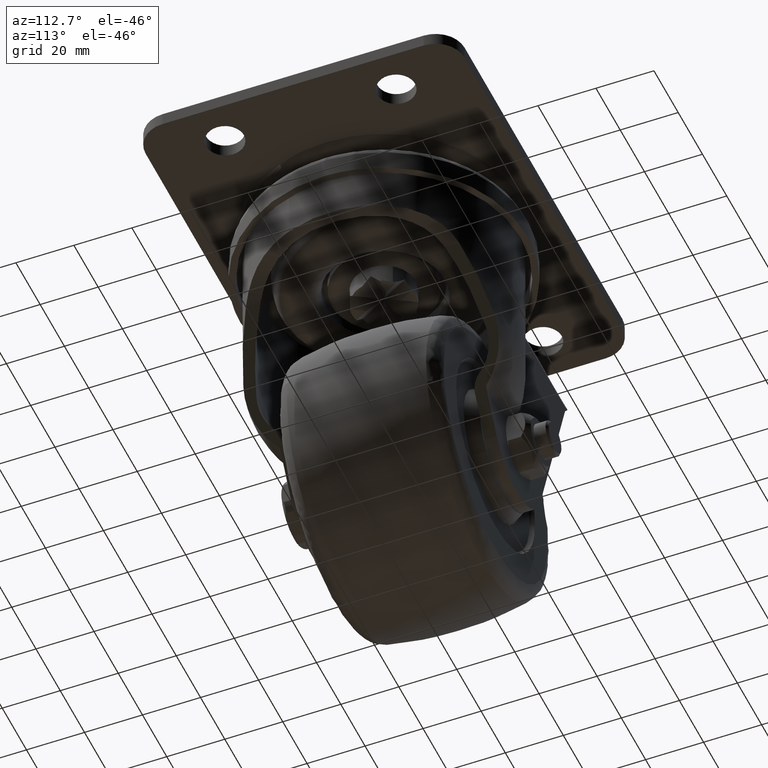
[diagram: clean part render]
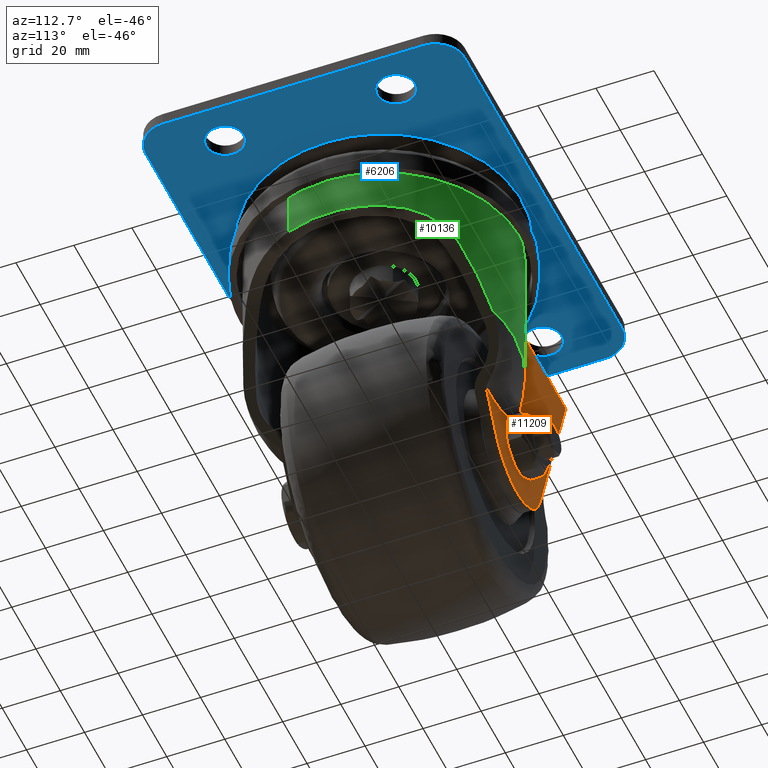
[diagram: same view with three faces highlighted in distinct colors, each labeled with its STEP entity id]
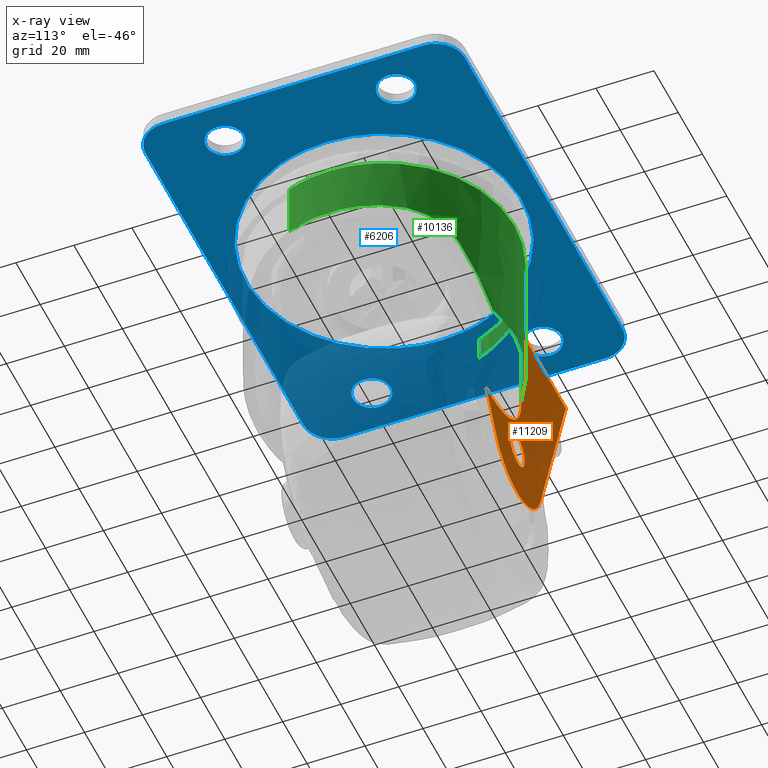
[diagram: x-ray of the same camera — body ghosted, the three highlighted faces saturated]
A machine part, auxiliary view with three faces highlighted in distinct colors.
The next image is the same camera in x-ray (body ghosted, the three faces saturated) — at least one of them is partly hidden behind the body in this view.
Their STEP definitions:

[orange] entity #11209 — the highlighted face is a freeform B-spline surface patch.
#7722=CARTESIAN_POINT('',(-28.332843133014400,35.500000000000000,-66.218025754067000));
#7723=VERTEX_POINT('',#7722);
#7733=CARTESIAN_POINT('',(0.629517540364250,35.500000000000000,-86.318193054968106));
#7734=VERTEX_POINT('',#7733);
#7745=CARTESIAN_POINT('',(-28.332843133014400,35.500000000000000,-66.218025754067000));
#7746=CARTESIAN_POINT('',(-28.332539590398699,35.500000000000000,-68.732301306255508));
#7747=CARTESIAN_POINT('',(-26.813206521767100,35.500000000000000,-73.517850499412702));
#7748=CARTESIAN_POINT('',(-22.714628932330001,35.500000000000000,-79.597112321937203));
#7749=CARTESIAN_POINT('',(-14.077133179166140,35.500000000000000,-84.510696960037905));
#7750=CARTESIAN_POINT('',(-4.335266991193291,35.500000000000000,-86.483571266999689));
#7751=CARTESIAN_POINT('',(0.629517540364253,35.500000000000000,-86.318193054968106));
#7752=B_SPLINE_CURVE_WITH_KNOTS('',2,(#7745,#7746,#7747,#7748,#7749,#7750,#7751),.UNSPECIFIED.,.F.,.U.,(3,1,1,1,1,3),(-6.511956213800517,0.167715338408318,6.847386890617155,19.295400969701731,30.030964259119958,39.711500365217177),.UNSPECIFIED.);
#7753=EDGE_CURVE('',#7723,#7734,#7752,.T.);
#7852=CARTESIAN_POINT('',(-29.321493822791499,35.500000000000000,-33.262512999999998));
#7853=VERTEX_POINT('',#7852);
#7881=CARTESIAN_POINT('',(-29.321493822791499,35.500000000000000,-33.262512999999998));
#7882=CARTESIAN_POINT('',(-29.321454426154649,35.500000000000000,-36.935447462140353));
#7883=CARTESIAN_POINT('',(-29.074534672811652,35.500000000000000,-44.336535118470849));
#7884=CARTESIAN_POINT('',(-28.579841963689152,35.500000000000000,-55.331508520155403));
#7885=CARTESIAN_POINT('',(-28.332883679954051,35.500000000000000,-62.565270924336012));
#7886=CARTESIAN_POINT('',(-28.332843133014400,35.500000000000000,-66.218025754067000));
#7887=B_SPLINE_CURVE_WITH_KNOTS('',2,(#7881,#7882,#7883,#7884,#7885,#7886),.UNSPECIFIED.,.F.,.U.,(3,1,1,1,3),(7.971663734485009,15.377274329818510,19.975566353278470,24.733417986950901,32.974968000410612),.UNSPECIFIED.);
#7888=EDGE_CURVE('',#7853,#7723,#7887,.T.);
#9677=CARTESIAN_POINT('',(-29.130127058682110,35.500000000013188,-85.647754397745800));
#9678=VERTEX_POINT('',#9677);
#9684=CARTESIAN_POINT('',(-25.0,35.500000000013202,-83.999999999999986));
#9685=VERTEX_POINT('',#9684);
#9686=CARTESIAN_POINT('',(-25.0,35.500000000013202,-83.999999999999986));
#9687=CARTESIAN_POINT('',(-25.403339247047370,35.500000000013230,-83.999942941506717));
#9688=CARTESIAN_POINT('',(-26.186231614919500,35.500000000013173,-84.079276407540107));
#9689=CARTESIAN_POINT('',(-27.645060034040601,35.500000000013202,-84.524801067569200));
#9690=CARTESIAN_POINT('',(-28.596977124234190,35.500000000013223,-85.140921633619271));
#9691=CARTESIAN_POINT('',(-29.130127058682110,35.500000000013188,-85.647754397745800));
#9692=B_SPLINE_CURVE_WITH_KNOTS('',3,(#9686,#9687,#9688,#9689,#9690,#9691),.UNSPECIFIED.,.F.,.U.,(4,1,1,4),(0.000000051318938,1.210011560304667,2.348812123819990,4.555335924081754),.UNSPECIFIED.);
#9693=EDGE_CURVE('',#9685,#9678,#9692,.T.);
#9695=CARTESIAN_POINT('',(-19.000000000000711,35.500000000006587,-90.000000000000014));
#9696=VERTEX_POINT('',#9695);
#9697=CARTESIAN_POINT('',(-19.000000000000711,35.500000000006587,-90.000000000000014));
#9698=CARTESIAN_POINT('',(-18.999918112934761,35.500000000006580,-89.509135730811607));
#9699=CARTESIAN_POINT('',(-19.133102150864790,35.500000000006750,-88.429173402031040));
#9700=CARTESIAN_POINT('',(-19.702740121429049,35.500000000007290,-87.053871209364402));
#9701=CARTESIAN_POINT('',(-20.540345932933501,35.500000000008420,-85.924850908949793));
#9702=CARTESIAN_POINT('',(-21.441236398903118,35.500000000009059,-85.118312238434768));
#9703=CARTESIAN_POINT('',(-22.464001258684220,35.500000000010871,-84.522244628661070));
#9704=CARTESIAN_POINT('',(-23.650154916606930,35.500000000011120,-84.106028875502602));
#9705=CARTESIAN_POINT('',(-24.509123379729751,35.500000000013387,-83.999884678832800));
#9706=CARTESIAN_POINT('',(-25.0,35.500000000013202,-83.999999999999986));
#9707=B_SPLINE_CURVE_WITH_KNOTS('',3,(#9697,#9698,#9699,#9700,#9701,#9702,#9703,#9704,#9705,#9706),.UNSPECIFIED.,.F.,.U.,(4,1,1,1,1,1,1,4),(0.000000210871100,1.472618242405139,3.239813819599975,4.417943349607154,5.669588285151809,6.847727551456135,7.952229767407610,9.424837097269450),.UNSPECIFIED.);
#9708=EDGE_CURVE('',#9696,#9685,#9707,.T.);
#9710=CARTESIAN_POINT('',(-20.869872941317901,35.500000000013202,-94.352245602254200));
#9711=VERTEX_POINT('',#9710);
#9712=CARTESIAN_POINT('',(-20.869872941317901,35.500000000013202,-94.352245602254200));
#9713=CARTESIAN_POINT('',(-20.465016232753030,35.500000000012442,-93.968297205415809));
#9714=CARTESIAN_POINT('',(-19.731641525339398,35.500000000010601,-93.046313526743248));
#9715=CARTESIAN_POINT('',(-19.121911898484441,35.500000000008257,-91.521773864330257));
#9716=CARTESIAN_POINT('',(-18.999961558176651,35.500000000007212,-90.456501255116834));
#9717=CARTESIAN_POINT('',(-19.000000000000711,35.500000000006587,-90.000000000000014));
#9718=B_SPLINE_CURVE_WITH_KNOTS('',3,(#9712,#9713,#9714,#9715,#9716,#9717),.UNSPECIFIED.,.F.,.U.,(4,1,1,4),(0.000000056209898,1.673892922491839,3.499950314148378,4.869500800991697),.UNSPECIFIED.);
#9719=EDGE_CURVE('',#9711,#9696,#9718,.T.);
#9759=CARTESIAN_POINT('',(-25.0,35.500000000013202,-96.0));
#9760=VERTEX_POINT('',#9759);
#9761=CARTESIAN_POINT('',(-25.0,35.500000000013202,-96.0));
#9762=CARTESIAN_POINT('',(-24.264386062088992,35.500000000013223,-96.000646909750543));
#9763=CARTESIAN_POINT('',(-23.149780645768299,35.500000000013173,-95.792308648849826));
#9764=CARTESIAN_POINT('',(-21.784904693544359,35.500000000013173,-95.111288148595818));
#9765=CARTESIAN_POINT('',(-21.162405634693620,35.500000000013202,-94.629928079572281));
#9766=CARTESIAN_POINT('',(-20.869872941317901,35.500000000013202,-94.352245602254200));
#9767=B_SPLINE_CURVE_WITH_KNOTS('',3,(#9761,#9762,#9763,#9764,#9765,#9766),.UNSPECIFIED.,.F.,.U.,(4,1,1,4),(0.000000051316036,2.206523851647675,3.345324415096741,4.555335924081676),.UNSPECIFIED.);
#9768=EDGE_CURVE('',#9760,#9711,#9767,.T.);
#9770=CARTESIAN_POINT('',(-30.999999999999300,35.500000000006587,-90.0));
#9771=VERTEX_POINT('',#9770);
#9772=CARTESIAN_POINT('',(-30.999999999999300,35.500000000006587,-90.0));
#9773=CARTESIAN_POINT('',(-31.000428807603740,35.500000000006622,-90.662738110321726));
#9774=CARTESIAN_POINT('',(-30.790471601977199,35.500000000006921,-91.914189281097890));
#9775=CARTESIAN_POINT('',(-29.979289938669162,35.500000000007567,-93.477910735427997));
#9776=CARTESIAN_POINT('',(-29.087064901723849,35.500000000008782,-94.437985448724874));
#9777=CARTESIAN_POINT('',(-28.163347554062391,35.500000000009678,-95.131866302336206));
#9778=CARTESIAN_POINT('',(-26.914015477634621,35.500000000011163,-95.780292315489035));
#9779=CARTESIAN_POINT('',(-25.736414775292921,35.500000000012392,-96.000655749768768));
#9780=CARTESIAN_POINT('',(-25.0,35.500000000013202,-96.0));
#9781=B_SPLINE_CURVE_WITH_KNOTS('',3,(#9772,#9773,#9774,#9775,#9776,#9777,#9778,#9779,#9780),.UNSPECIFIED.,.F.,.U.,(4,1,1,1,1,1,4),(0.000000210889400,1.988049423983780,3.755250080596134,5.227837225365446,5.890511881275450,7.215893209776874,9.424837097269124),.UNSPECIFIED.);
#9782=EDGE_CURVE('',#9771,#9760,#9781,.T.);
#9784=CARTESIAN_POINT('',(-29.130127058682110,35.500000000013188,-85.647754397745800));
#9785=CARTESIAN_POINT('',(-29.627208933615520,35.500000000012058,-86.118848036486270));
#9786=CARTESIAN_POINT('',(-30.226256098102841,35.500000000010772,-86.923974146914659));
#9787=CARTESIAN_POINT('',(-30.849766830225651,35.500000000008207,-88.427771065051317));
#9788=CARTESIAN_POINT('',(-31.000391979563972,35.500000000007368,-89.365893172947551));
#9789=CARTESIAN_POINT('',(-30.999999999999300,35.500000000006587,-90.0));
#9790=B_SPLINE_CURVE_WITH_KNOTS('',3,(#9784,#9785,#9786,#9787,#9788,#9789),.UNSPECIFIED.,.F.,.U.,(4,1,1,4),(0.000000056209906,2.054321797179680,2.967341500289233,4.869500800991676),.UNSPECIFIED.);
#9791=EDGE_CURVE('',#9678,#9771,#9790,.T.);
#10228=CARTESIAN_POINT('',(-64.970363264465703,35.500000000000000,-33.262512999999998));
#10229=VERTEX_POINT('',#10228);
#10230=CARTESIAN_POINT('',(-64.970363264465703,35.500000000000000,-33.262512999999998));
#10231=CARTESIAN_POINT('',(-29.321493822791499,35.500000000000000,-33.262512999999998));
#10232=QUASI_UNIFORM_CURVE('',1,(#10230,#10231),.UNSPECIFIED.,.F.,.U.);
#10233=EDGE_CURVE('',#10229,#7853,#10232,.T.);
#11157=CARTESIAN_POINT('',(-68.247077183521668,35.500000000000000,-113.819255654366900));
#11158=CARTESIAN_POINT('',(3.906233218946122,35.500000000000000,-113.819255654366900));
#11159=CARTESIAN_POINT('',(-68.247077183521668,35.500000000000000,-29.430129259895690));
#11160=CARTESIAN_POINT('',(3.906233218946122,35.500000000000000,-29.430129259895690));
#11161=B_SPLINE_SURFACE_WITH_KNOTS('',1,1,((#11157,#11159),(#11158,#11160)),.UNSPECIFIED.,.F.,.F.,.U.,(2,2),(2,2),(0.0,72.153310402467795),(0.0,84.389126394471234),.UNSPECIFIED.);
#11162=ORIENTED_EDGE('',*,*,#7888,.T.);
#11163=ORIENTED_EDGE('',*,*,#7753,.T.);
#11164=CARTESIAN_POINT('',(-7.900707175428000,35.500000000000000,-100.373725700033800));
#11165=VERTEX_POINT('',#11164);
#11166=CARTESIAN_POINT('',(0.629517540364250,35.500000000000000,-86.318193054968106));
#11167=CARTESIAN_POINT('',(-7.900707175428000,35.500000000000000,-100.373725700033800));
#11168=QUASI_UNIFORM_CURVE('',1,(#11166,#11167),.UNSPECIFIED.,.F.,.U.);
#11169=EDGE_CURVE('',#7734,#11165,#11168,.T.);
#11170=ORIENTED_EDGE('',*,*,#11169,.T.);
#11171=CARTESIAN_POINT('',(-43.975829986240399,35.500000000000000,-96.318059538600494));
#11172=VERTEX_POINT('',#11171);
#11173=CARTESIAN_POINT('',(-43.975829986240399,35.500000000000000,-96.318059538600494));
#11174=CARTESIAN_POINT('',(-43.545552056948537,35.500000000000007,-97.610898144857160));
#11175=CARTESIAN_POINT('',(-42.615127837671729,35.500000000000050,-99.673688750819935));
#11176=CARTESIAN_POINT('',(-40.559696251437401,35.499999999999957,-102.727581313609800));
#11177=CARTESIAN_POINT('',(-38.123566771354483,35.500000000000277,-105.261642087689690));
#11178=CARTESIAN_POINT('',(-35.197614473018277,35.500000000000092,-107.304572037630510));
#11179=CARTESIAN_POINT('',(-32.362709087006763,35.499999999999822,-108.672666955890800));
#11180=CARTESIAN_POINT('',(-29.697637235695680,35.500000000000121,-109.505792510068800));
#11181=CARTESIAN_POINT('',(-26.360452907076699,35.499999999999957,-110.062726562417400));
#11182=CARTESIAN_POINT('',(-22.961454729653290,35.500000000000007,-110.020356316443890));
#11183=CARTESIAN_POINT('',(-19.644915201745160,35.500000000000043,-109.335653440412600));
#11184=CARTESIAN_POINT('',(-16.960078045277150,35.499999999999773,-108.382188117622500));
#11185=CARTESIAN_POINT('',(-14.481984943321930,35.500000000000689,-107.095325586231990));
#11186=CARTESIAN_POINT('',(-12.219263877625259,35.499999999999268,-105.460668312677600));
#11187=CARTESIAN_POINT('',(-9.936612858781153,35.500000000000057,-103.295937060858610));
#11188=CARTESIAN_POINT('',(-8.607265089667585,35.500000000000959,-101.538766387204010));
#11189=CARTESIAN_POINT('',(-7.900707175428000,35.500000000000000,-100.373725700033800));
#11190=B_SPLINE_CURVE_WITH_KNOTS('',3,(#11173,#11174,#11175,#11176,#11177,#11178,#11179,#11180,#11181,#11182,#11183,#11184,#11185,#11186,#11187,#11188,#11189),.UNSPECIFIED.,.F.,.U.,(4,1,1,1,1,1,1,1,1,1,1,1,1,1,4),(0.000000219720761,4.087656686293265,6.753530496907899,11.018940388638139,14.573448797286529,17.417051402028459,20.438402568237020,22.926444054370851,27.547293433321681,30.568673054127320,33.056819124029182,36.078166395442850,38.921761291009780,41.409959034173667,45.497565221593703),.UNSPECIFIED.);
#11191=EDGE_CURVE('',#11172,#11165,#11190,.T.);
#11192=ORIENTED_EDGE('',*,*,#11191,.F.);
#11193=CARTESIAN_POINT('',(-43.975829986240399,35.500000000000000,-96.318059538600494));
#11194=CARTESIAN_POINT('',(-64.970363264465703,35.500000000000000,-33.262512999999998));
#11195=QUASI_UNIFORM_CURVE('',1,(#11193,#11194),.UNSPECIFIED.,.F.,.U.);
#11196=EDGE_CURVE('',#11172,#10229,#11195,.T.);
#11197=ORIENTED_EDGE('',*,*,#11196,.T.);
#11198=ORIENTED_EDGE('',*,*,#10233,.T.);
#11199=EDGE_LOOP('',(#11162,#11163,#11170,#11192,#11197,#11198));
#11200=FACE_OUTER_BOUND('',#11199,.T.);
#11201=ORIENTED_EDGE('',*,*,#9708,.T.);
#11202=ORIENTED_EDGE('',*,*,#9693,.T.);
#11203=ORIENTED_EDGE('',*,*,#9791,.T.);
#11204=ORIENTED_EDGE('',*,*,#9782,.T.);
#11205=ORIENTED_EDGE('',*,*,#9768,.T.);
#11206=ORIENTED_EDGE('',*,*,#9719,.T.);
#11207=EDGE_LOOP('',(#11201,#11202,#11203,#11204,#11205,#11206));
#11208=FACE_BOUND('',#11207,.T.);
#11209=ADVANCED_FACE('',(#11200,#11208),#11161,.F.);

[blue] entity #6206 — the highlighted face is a freeform B-spline surface patch.
#3567=CARTESIAN_POINT('',(-55.785066995125788,33.974304149085206,-4.499999999999949));
#3568=VERTEX_POINT('',#3567);
#3574=CARTESIAN_POINT('',(-54.0,29.500000000000000,-4.499999999999949));
#3575=VERTEX_POINT('',#3574);
#3576=CARTESIAN_POINT('',(-54.0,29.500000000000000,-4.499999999999949));
#3577=CARTESIAN_POINT('',(-53.999771527114802,30.091193061421251,-4.499999999999957));
#3578=CARTESIAN_POINT('',(-54.127179319181799,31.016339180428730,-4.499999999999951));
#3579=CARTESIAN_POINT('',(-54.692755568147668,32.566297026179058,-4.499999999999949));
#3580=CARTESIAN_POINT('',(-55.289279127049383,33.452528304899353,-4.499999999999948));
#3581=CARTESIAN_POINT('',(-55.785066995125788,33.974304149085206,-4.499999999999949));
#3582=B_SPLINE_CURVE_WITH_KNOTS('',3,(#3576,#3577,#3578,#3579,#3580,#3581),.UNSPECIFIED.,.F.,.U.,(4,1,1,4),(0.000000049309103,1.773500384366229,2.775888428003148,4.934946977649714),.UNSPECIFIED.);
#3583=EDGE_CURVE('',#3575,#3568,#3582,.T.);
#3585=CARTESIAN_POINT('',(-60.499997183516591,23.000000000000611,-4.499999999999949));
#3586=VERTEX_POINT('',#3585);
#3587=CARTESIAN_POINT('',(-60.499997183516591,23.000000000000611,-4.499999999999949));
#3588=CARTESIAN_POINT('',(-60.127758984056527,22.999980594830941,-4.499999999999950));
#3589=CARTESIAN_POINT('',(-59.303493726862577,23.070946789149080,-4.499999999999951));
#3590=CARTESIAN_POINT('',(-58.146049183680049,23.398921349132600,-4.499999999999943));
#3591=CARTESIAN_POINT('',(-56.906417767585843,24.022804879650739,-4.499999999999947));
#3592=CARTESIAN_POINT('',(-55.885857095979659,24.849920683131550,-4.499999999999963));
#3593=CARTESIAN_POINT('',(-54.968703192748563,25.995960137732819,-4.499999999999948));
#3594=CARTESIAN_POINT('',(-54.221749569784528,27.479500759056819,-4.499999999999947));
#3595=CARTESIAN_POINT('',(-53.999477593076861,28.755449456445898,-4.499999999999936));
#3596=CARTESIAN_POINT('',(-54.0,29.500000000000000,-4.499999999999949));
#3597=B_SPLINE_CURVE_WITH_KNOTS('',3,(#3587,#3588,#3589,#3590,#3591,#3592,#3593,#3594,#3595,#3596),.UNSPECIFIED.,.F.,.U.,(4,1,1,1,1,1,1,4),(0.000000214756135,1.116725721379083,2.472791213825356,3.589546317298107,5.264615511058436,6.381366549985041,7.976754844727179,10.210238601278590),.UNSPECIFIED.);
#3598=EDGE_CURVE('',#3586,#3575,#3597,.T.);
#3600=CARTESIAN_POINT('',(-65.214933004874212,25.025695850914801,-4.499999999999949));
#3601=VERTEX_POINT('',#3600);
#3602=CARTESIAN_POINT('',(-65.214933004874212,25.025695850914801,-4.499999999999949));
#3603=CARTESIAN_POINT('',(-64.799008432999869,24.587051415576479,-4.499999999999954));
#3604=CARTESIAN_POINT('',(-63.995501554436260,23.948304364122951,-4.499999999999945));
#3605=CARTESIAN_POINT('',(-62.395491158018757,23.199752029558820,-4.499999999999953));
#3606=CARTESIAN_POINT('',(-61.241904775582853,22.999534174667669,-4.499999999999952));
#3607=CARTESIAN_POINT('',(-60.499997183516591,23.000000000000611,-4.499999999999949));
#3608=B_SPLINE_CURVE_WITH_KNOTS('',3,(#3602,#3603,#3604,#3605,#3606,#3607),.UNSPECIFIED.,.F.,.U.,(4,1,1,4),(0.000000060881471,1.813386014387196,3.049778222688444,5.275295688767549),.UNSPECIFIED.);
#3609=EDGE_CURVE('',#3601,#3586,#3608,.T.);
#3649=CARTESIAN_POINT('',(-67.0,29.500000000000000,-4.499999999999949));
#3650=VERTEX_POINT('',#3649);
#3651=CARTESIAN_POINT('',(-67.0,29.500000000000000,-4.499999999999949));
#3652=CARTESIAN_POINT('',(-67.000665641641149,28.703104737664471,-4.499999999999942));
#3653=CARTESIAN_POINT('',(-66.760652324055968,27.418476529263650,-4.499999999999979));
#3654=CARTESIAN_POINT('',(-65.995265884598624,25.950538024230610,-4.499999999999919));
#3655=CARTESIAN_POINT('',(-65.462639818945590,25.286699959994380,-4.499999999999964));
#3656=CARTESIAN_POINT('',(-65.214933004874212,25.025695850914801,-4.499999999999949));
#3657=B_SPLINE_CURVE_WITH_KNOTS('',3,(#3651,#3652,#3653,#3654,#3655,#3656),.UNSPECIFIED.,.F.,.U.,(4,1,1,4),(0.000000049307908,2.390396514535595,3.855429611381061,4.934946977649712),.UNSPECIFIED.);
#3658=EDGE_CURVE('',#3650,#3601,#3657,.T.);
#3660=CARTESIAN_POINT('',(-60.500002816483402,35.999999999999389,-4.499999999999949));
#3661=VERTEX_POINT('',#3660);
#3662=CARTESIAN_POINT('',(-60.500002816483402,35.999999999999389,-4.499999999999949));
#3663=CARTESIAN_POINT('',(-61.058376756352573,36.000150355949387,-4.499999999999949));
#3664=CARTESIAN_POINT('',(-62.068691634116810,35.868998078532499,-4.499999999999946));
#3665=CARTESIAN_POINT('',(-63.443770788600709,35.348240867511571,-4.499999999999956));
#3666=CARTESIAN_POINT('',(-64.523661005261474,34.655039535979583,-4.499999999999927));
#3667=CARTESIAN_POINT('',(-65.432079776155987,33.790143402994389,-4.499999999999984));
#3668=CARTESIAN_POINT('',(-66.058092852496117,32.924020750144457,-4.499999999999920));
#3669=CARTESIAN_POINT('',(-66.597133699605493,31.853251349144969,-4.499999999999985));
#3670=CARTESIAN_POINT('',(-66.924512797990829,30.749695687567950,-4.499999999999773));
#3671=CARTESIAN_POINT('',(-67.000008721854201,29.872233221505670,-4.500000000000155));
#3672=CARTESIAN_POINT('',(-67.0,29.500000000000000,-4.499999999999949));
#3673=B_SPLINE_CURVE_WITH_KNOTS('',3,(#3662,#3663,#3664,#3665,#3666,#3667,#3668,#3669,#3670,#3671,#3672),.UNSPECIFIED.,.F.,.U.,(4,1,1,1,1,1,1,1,4),(0.000000214806230,1.675103373865545,3.031169577022228,4.387254582914811,5.503944866911466,6.780219901310039,7.577910567241601,9.093518363874459,10.210238601278380),.UNSPECIFIED.);
#3674=EDGE_CURVE('',#3661,#3650,#3673,.T.);
#3676=CARTESIAN_POINT('',(-55.785066995125788,33.974304149085206,-4.499999999999949));
#3677=CARTESIAN_POINT('',(-56.314252598199111,34.532817703733073,-4.499999999999962));
#3678=CARTESIAN_POINT('',(-57.371609969290532,35.309074514337063,-4.499999999999934));
#3679=CARTESIAN_POINT('',(-59.043837155863592,35.892978194382067,-4.499999999999963));
#3680=CARTESIAN_POINT('',(-60.032921905941997,36.000054049435498,-4.499999999999941));
#3681=CARTESIAN_POINT('',(-60.500002816483402,35.999999999999389,-4.499999999999949));
#3682=B_SPLINE_CURVE_WITH_KNOTS('',3,(#3676,#3677,#3678,#3679,#3680,#3681),.UNSPECIFIED.,.F.,.U.,(4,1,1,4),(0.000000060882861,2.307968319923857,3.874044125942243,5.275295688767532),.UNSPECIFIED.);
#3683=EDGE_CURVE('',#3568,#3661,#3682,.T.);
#3772=CARTESIAN_POINT('',(-55.785066995125781,-25.025695850914790,-4.499999999999949));
#3773=VERTEX_POINT('',#3772);
#3779=CARTESIAN_POINT('',(-54.0,-29.500000000000000,-4.499999999999949));
#3780=VERTEX_POINT('',#3779);
#3781=CARTESIAN_POINT('',(-54.0,-29.500000000000000,-4.499999999999949));
#3782=CARTESIAN_POINT('',(-53.999509573073617,-28.780248795520730,-4.499999999999952));
#3783=CARTESIAN_POINT('',(-54.198485728604091,-27.598256466419429,-4.499999999999948));
#3784=CARTESIAN_POINT('',(-54.901641452295983,-26.100733451346301,-4.499999999999958));
#3785=CARTESIAN_POINT('',(-55.466546233819237,-25.361245288544740,-4.499999999999941));
#3786=CARTESIAN_POINT('',(-55.785066995125781,-25.025695850914790,-4.499999999999949));
#3787=B_SPLINE_CURVE_WITH_KNOTS('',3,(#3781,#3782,#3783,#3784,#3785,#3786),.UNSPECIFIED.,.F.,.U.,(4,1,1,4),(0.000000049310986,2.159058599039236,3.546990879769790,4.934946977649702),.UNSPECIFIED.);
#3788=EDGE_CURVE('',#3780,#3773,#3787,.T.);
#3790=CARTESIAN_POINT('',(-60.499997183516591,-35.999999999999403,-4.499999999999950));
#3791=VERTEX_POINT('',#3790);
#3792=CARTESIAN_POINT('',(-60.499997183516591,-35.999999999999403,-4.499999999999950));
#3793=CARTESIAN_POINT('',(-60.127757848478552,-36.000020580065119,-4.499999999999949));
#3794=CARTESIAN_POINT('',(-59.330092139016891,-35.931318466417977,-4.499999999999953));
#3795=CARTESIAN_POINT('',(-58.119861120754528,-35.596440073250228,-4.499999999999954));
#3796=CARTESIAN_POINT('',(-56.762825411452653,-34.903092553627822,-4.499999999999949));
#3797=CARTESIAN_POINT('',(-55.695643633015862,-33.959555825571698,-4.499999999999944));
#3798=CARTESIAN_POINT('',(-54.899342003113468,-32.857334243885781,-4.499999999999955));
#3799=CARTESIAN_POINT('',(-54.223131264396663,-31.493761829445770,-4.499999999999909));
#3800=CARTESIAN_POINT('',(-53.999252222879150,-30.297792336889071,-4.499999999999997));
#3801=CARTESIAN_POINT('',(-54.0,-29.500000000000000,-4.499999999999949));
#3802=B_SPLINE_CURVE_WITH_KNOTS('',3,(#3792,#3793,#3794,#3795,#3796,#3797,#3798,#3799,#3800,#3801),.UNSPECIFIED.,.F.,.U.,(4,1,1,1,1,1,1,4),(0.000000214770303,1.116725721391328,2.393021276081775,3.749081627747875,5.663468420239047,6.620694273545459,7.817217944731972,10.210238601278389),.UNSPECIFIED.);
#3803=EDGE_CURVE('',#3791,#3780,#3802,.T.);
#3805=CARTESIAN_POINT('',(-65.214933004874212,-33.974304149085206,-4.499999999999949));
#3806=VERTEX_POINT('',#3805);
#3807=CARTESIAN_POINT('',(-65.214933004874212,-33.974304149085206,-4.499999999999949));
#3808=CARTESIAN_POINT('',(-64.798986295456146,-34.412930287537051,-4.499999999999946));
#3809=CARTESIAN_POINT('',(-64.082393639658463,-34.982659389084468,-4.499999999999959));
#3810=CARTESIAN_POINT('',(-62.924057512644467,-35.560595248128060,-4.499999999999938));
#3811=CARTESIAN_POINT('',(-61.818802139614121,-35.907799223851477,-4.499999999999965));
#3812=CARTESIAN_POINT('',(-60.967081083521457,-36.000072543212958,-4.499999999999964));
#3813=CARTESIAN_POINT('',(-60.499997183516591,-35.999999999999403,-4.499999999999950));
#3814=B_SPLINE_CURVE_WITH_KNOTS('',3,(#3807,#3808,#3809,#3810,#3811,#3812,#3813),.UNSPECIFIED.,.F.,.U.,(4,1,1,1,4),(0.000000060882838,1.813386014388485,2.720040477768521,3.874044125943199,5.275295688767510),.UNSPECIFIED.);
#3815=EDGE_CURVE('',#3806,#3791,#3814,.T.);
#3855=CARTESIAN_POINT('',(-67.0,-29.500000000000000,-4.499999999999949));
#3856=VERTEX_POINT('',#3855);
#3857=CARTESIAN_POINT('',(-67.0,-29.500000000000000,-4.499999999999949));
#3858=CARTESIAN_POINT('',(-67.000049187794346,-29.988346899287020,-4.499999999999955));
#3859=CARTESIAN_POINT('',(-66.875028761154852,-31.093595328386929,-4.499999999999952));
#3860=CARTESIAN_POINT('',(-66.277679047222563,-32.644162983240037,-4.499999999999916));
#3861=CARTESIAN_POINT('',(-65.586537719171702,-33.582840574043772,-4.499999999999983));
#3862=CARTESIAN_POINT('',(-65.214933004874212,-33.974304149085206,-4.499999999999949));
#3863=B_SPLINE_CURVE_WITH_KNOTS('',3,(#3857,#3858,#3859,#3860,#3861,#3862),.UNSPECIFIED.,.F.,.U.,(4,1,1,4),(0.000000049305540,1.465067641207816,3.315661204865001,4.934946977649750),.UNSPECIFIED.);
#3864=EDGE_CURVE('',#3856,#3806,#3863,.T.);
#3866=CARTESIAN_POINT('',(-60.500002816483402,-23.000000000000611,-4.499999999999949));
#3867=VERTEX_POINT('',#3866);
#3868=CARTESIAN_POINT('',(-60.500002816483402,-23.000000000000611,-4.499999999999949));
#3869=CARTESIAN_POINT('',(-61.191368490933542,-22.999601613722739,-4.499999999999960));
#3870=CARTESIAN_POINT('',(-62.334424859873117,-23.184226891892560,-4.499999999999920));
#3871=CARTESIAN_POINT('',(-63.943153279153726,-23.909087888294739,-4.499999999999992));
#3872=CARTESIAN_POINT('',(-65.144074846542821,-24.858153419576940,-4.499999999999881));
#3873=CARTESIAN_POINT('',(-66.074058210406164,-26.065344013287010,-4.500000000000052));
#3874=CARTESIAN_POINT('',(-66.792120528152736,-27.559307012993781,-4.499999999999881));
#3875=CARTESIAN_POINT('',(-67.000486703484938,-28.755435914834660,-4.499999999999942));
#3876=CARTESIAN_POINT('',(-67.0,-29.500000000000000,-4.499999999999949));
#3877=B_SPLINE_CURVE_WITH_KNOTS('',3,(#3868,#3869,#3870,#3871,#3872,#3873,#3874,#3875,#3876),.UNSPECIFIED.,.F.,.U.,(4,1,1,1,1,1,4),(0.000000214811307,2.073952935416530,3.430020038061564,5.264615511083531,6.620694273557589,7.976754844739224,10.210238601278370),.UNSPECIFIED.);
#3878=EDGE_CURVE('',#3867,#3856,#3877,.T.);
#3880=CARTESIAN_POINT('',(-55.785066995125781,-25.025695850914790,-4.499999999999949));
#3881=CARTESIAN_POINT('',(-56.219874582429178,-24.567078628877240,-4.499999999999957));
#3882=CARTESIAN_POINT('',(-57.071867127098400,-23.898622332327559,-4.499999999999940));
#3883=CARTESIAN_POINT('',(-58.686842851519998,-23.180302023807101,-4.499999999999951));
#3884=CARTESIAN_POINT('',(-59.813064792971872,-22.999628630416979,-4.499999999999956));
#3885=CARTESIAN_POINT('',(-60.500002816483402,-23.000000000000611,-4.499999999999949));
#3886=B_SPLINE_CURVE_WITH_KNOTS('',3,(#3880,#3881,#3882,#3883,#3884,#3885),.UNSPECIFIED.,.F.,.U.,(4,1,1,4),(0.000000060883871,1.895824261086034,3.214621872819265,5.275295688767533),.UNSPECIFIED.);
#3887=EDGE_CURVE('',#3773,#3867,#3886,.T.);
#3974=CARTESIAN_POINT('',(65.214933004874212,-25.025695850914790,-4.499999999999949));
#3975=VERTEX_POINT('',#3974);
#3981=CARTESIAN_POINT('',(67.0,-29.500000000000000,-4.499999999999949));
#3982=VERTEX_POINT('',#3981);
#3983=CARTESIAN_POINT('',(67.0,-29.500000000000000,-4.499999999999949));
#3984=CARTESIAN_POINT('',(67.000106876921933,-28.960236361358501,-4.499999999999949));
#3985=CARTESIAN_POINT('',(66.861626273021201,-27.855053633495348,-4.499999999999957));
#3986=CARTESIAN_POINT('',(66.246872758881366,-26.314143793531390,-4.499999999999941));
#3987=CARTESIAN_POINT('',(65.586559400493869,-25.417152747469579,-4.499999999999951));
#3988=CARTESIAN_POINT('',(65.214933004874212,-25.025695850914790,-4.499999999999949));
#3989=B_SPLINE_CURVE_WITH_KNOTS('',3,(#3983,#3984,#3985,#3986,#3987,#3988),.UNSPECIFIED.,.F.,.U.,(4,1,1,4),(0.000000049310926,1.619285822152132,3.315661204866200,4.934946977649678),.UNSPECIFIED.);
#3990=EDGE_CURVE('',#3982,#3975,#3989,.T.);
#3992=CARTESIAN_POINT('',(60.500002816483402,-35.999999999999389,-4.499999999999949));
#3993=VERTEX_POINT('',#3992);
#3994=CARTESIAN_POINT('',(60.500002816483402,-35.999999999999389,-4.499999999999949));
#3995=CARTESIAN_POINT('',(61.058386361919617,-36.000161399176889,-4.499999999999947));
#3996=CARTESIAN_POINT('',(62.068670303470661,-35.868986246539023,-4.499999999999952));
#3997=CARTESIAN_POINT('',(63.443778425801924,-35.348236938327489,-4.499999999999957));
#3998=CARTESIAN_POINT('',(64.613651985687071,-34.597304700549110,-4.499999999999949));
#3999=CARTESIAN_POINT('',(65.692021275674435,-33.519160535440541,-4.499999999999957));
#4000=CARTESIAN_POINT('',(66.450643927868285,-32.253353509104713,-4.499999999999917));
#4001=CARTESIAN_POINT('',(66.902641817473224,-30.855993533495070,-4.500000000000017));
#4002=CARTESIAN_POINT('',(67.000080108327921,-29.978595580998750,-4.499999999999922));
#4003=CARTESIAN_POINT('',(67.0,-29.500000000000000,-4.499999999999949));
#4004=B_SPLINE_CURVE_WITH_KNOTS('',3,(#3994,#3995,#3996,#3997,#3998,#3999,#4000,#4001,#4002,#4003),.UNSPECIFIED.,.F.,.U.,(4,1,1,1,1,1,1,4),(0.000000214823888,1.675103373878088,3.031169577031194,4.387254582920274,5.822984863437279,7.577910567243150,8.774456107231579,10.210238601278361),.UNSPECIFIED.);
#4005=EDGE_CURVE('',#3993,#3982,#4004,.T.);
#4007=CARTESIAN_POINT('',(55.785066995125781,-33.974304149085206,-4.499999999999949));
#4008=VERTEX_POINT('',#4007);
#4009=CARTESIAN_POINT('',(55.785066995125781,-33.974304149085206,-4.499999999999949));
#4010=CARTESIAN_POINT('',(56.125439328919221,-34.333104639955572,-4.499999999999965));
#4011=CARTESIAN_POINT('',(56.888592039405772,-34.972413038130213,-4.499999999999923));
#4012=CARTESIAN_POINT('',(58.467174070115362,-35.772912392867667,-4.499999999999992));
#4013=CARTESIAN_POINT('',(59.730601175306333,-36.000570716627891,-4.499999999999913));
#4014=CARTESIAN_POINT('',(60.500002816483402,-35.999999999999389,-4.499999999999949));
#4015=B_SPLINE_CURVE_WITH_KNOTS('',3,(#4009,#4010,#4011,#4012,#4013,#4014),.UNSPECIFIED.,.F.,.U.,(4,1,1,4),(0.000000060879877,1.483680647826314,2.967327429646582,5.275295688767550),.UNSPECIFIED.);
#4016=EDGE_CURVE('',#4008,#3993,#4015,.T.);
#4056=CARTESIAN_POINT('',(54.0,-29.500000000000000,-4.499999999999949));
#4057=VERTEX_POINT('',#4056);
#4058=CARTESIAN_POINT('',(54.0,-29.500000000000000,-4.499999999999949));
#4059=CARTESIAN_POINT('',(53.999578374324287,-30.219742578773509,-4.499999999999966));
#4060=CARTESIAN_POINT('',(54.194103984103279,-31.376049407895369,-4.499999999999937));
#4061=CARTESIAN_POINT('',(54.888028916871889,-32.876784188155028,-4.499999999999952));
#4062=CARTESIAN_POINT('',(55.448837017607033,-33.620121071191072,-4.499999999999949));
#4063=CARTESIAN_POINT('',(55.785066995125781,-33.974304149085206,-4.499999999999949));
#4064=B_SPLINE_CURVE_WITH_KNOTS('',3,(#4058,#4059,#4060,#4061,#4062,#4063),.UNSPECIFIED.,.F.,.U.,(4,1,1,4),(0.000000049310249,2.159058599038974,3.469879385814352,4.934946977649704),.UNSPECIFIED.);
#4065=EDGE_CURVE('',#4057,#4008,#4064,.T.);
#4067=CARTESIAN_POINT('',(60.499997183516619,-23.000000000000611,-4.499999999999949));
#4068=VERTEX_POINT('',#4067);
#4069=CARTESIAN_POINT('',(60.499997183516619,-23.000000000000611,-4.499999999999949));
#4070=CARTESIAN_POINT('',(59.941618049094352,-22.999853999722351,-4.499999999999947));
#4071=CARTESIAN_POINT('',(59.037681582025080,-23.117232047750250,-4.499999999999965));
#4072=CARTESIAN_POINT('',(57.653322665628188,-23.602951217962030,-4.499999999999960));
#4073=CARTESIAN_POINT('',(56.416086993341509,-24.354757319045280,-4.499999999999901));
#4074=CARTESIAN_POINT('',(55.331006092613400,-25.466949821469321,-4.499999999999948));
#4075=CARTESIAN_POINT('',(54.636861465209812,-26.609274935646361,-4.499999999999962));
#4076=CARTESIAN_POINT('',(54.136140622738182,-27.931378300716140,-4.499999999999876));
#4077=CARTESIAN_POINT('',(53.999761141567490,-28.888425759975771,-4.500000000000055));
#4078=CARTESIAN_POINT('',(54.0,-29.500000000000000,-4.499999999999949));
#4079=B_SPLINE_CURVE_WITH_KNOTS('',3,(#4069,#4070,#4071,#4072,#4073,#4074,#4075,#4076,#4077,#4078),.UNSPECIFIED.,.F.,.U.,(4,1,1,1,1,1,1,4),(0.000000214749507,1.675103373817194,2.712099067918730,4.387254582882074,5.982514839087045,7.338603159642563,8.375605355894843,10.210238601278609),.UNSPECIFIED.);
#4080=EDGE_CURVE('',#4068,#4057,#4079,.T.);
#4082=CARTESIAN_POINT('',(65.214933004874212,-25.025695850914790,-4.499999999999949));
#4083=CARTESIAN_POINT('',(64.836765116828133,-24.627008374669490,-4.499999999999958));
#4084=CARTESIAN_POINT('',(63.935657582663588,-23.891304476078130,-4.499999999999959));
#4085=CARTESIAN_POINT('',(62.313309449064832,-23.169757141789059,-4.499999999999907));
#4086=CARTESIAN_POINT('',(61.104467497314822,-22.999818879866311,-4.499999999999989));
#4087=CARTESIAN_POINT('',(60.499997183516619,-23.000000000000611,-4.499999999999949));
#4088=B_SPLINE_CURVE_WITH_KNOTS('',3,(#4082,#4083,#4084,#4085,#4086,#4087),.UNSPECIFIED.,.F.,.U.,(4,1,1,4),(0.000000060881764,1.648533885632965,3.461909735284002,5.275295688767514),.UNSPECIFIED.);
#4089=EDGE_CURVE('',#3975,#4068,#4088,.T.);
#4175=CARTESIAN_POINT('',(65.214933004874212,33.974304149085206,-4.499999999999949));
#4176=VERTEX_POINT('',#4175);
#4182=CARTESIAN_POINT('',(67.0,29.500000000000000,-4.499999999999949));
#4183=VERTEX_POINT('',#4182);
#4184=CARTESIAN_POINT('',(67.0,29.500000000000000,-4.499999999999949));
#4185=CARTESIAN_POINT('',(67.000265751587975,30.142605464991739,-4.499999999999954));
#4186=CARTESIAN_POINT('',(66.853959679639658,31.119115668567691,-4.499999999999949));
#4187=CARTESIAN_POINT('',(66.251597751514083,32.655154870253888,-4.499999999999952));
#4188=CARTESIAN_POINT('',(65.675264462656301,33.489770013782689,-4.499999999999946));
#4189=CARTESIAN_POINT('',(65.214933004874212,33.974304149085206,-4.499999999999949));
#4190=B_SPLINE_CURVE_WITH_KNOTS('',3,(#4184,#4185,#4186,#4187,#4188,#4189),.UNSPECIFIED.,.F.,.U.,(4,1,1,4),(0.000000049305222,1.927717785589641,2.930104703075736,4.934946977649704),.UNSPECIFIED.);
#4191=EDGE_CURVE('',#4183,#4176,#4190,.T.);
#4193=CARTESIAN_POINT('',(60.500002816483402,23.000000000000611,-4.499999999999949));
#4194=VERTEX_POINT('',#4193);
#4195=CARTESIAN_POINT('',(60.500002816483402,23.000000000000611,-4.499999999999949));
#4196=CARTESIAN_POINT('',(61.244583117417207,22.999444943007411,-4.499999999999932));
#4197=CARTESIAN_POINT('',(62.334355821464143,23.189410344445161,-4.499999999999981));
#4198=CARTESIAN_POINT('',(63.623201396998311,23.770428440802881,-4.499999999999922));
#4199=CARTESIAN_POINT('',(64.628946821359349,24.424558198634120,-4.499999999999975));
#4200=CARTESIAN_POINT('',(65.568457935775129,25.341306111498621,-4.499999999999930));
#4201=CARTESIAN_POINT('',(66.304877750254263,26.488748359290501,-4.499999999999998));
#4202=CARTESIAN_POINT('',(66.849961882241729,27.851632537626401,-4.499999999999861));
#4203=CARTESIAN_POINT('',(67.000263812797826,28.861829031734381,-4.500000000000056));
#4204=CARTESIAN_POINT('',(67.0,29.500000000000000,-4.499999999999949));
#4205=B_SPLINE_CURVE_WITH_KNOTS('',3,(#4195,#4196,#4197,#4198,#4199,#4200,#4201,#4202,#4203,#4204),.UNSPECIFIED.,.F.,.U.,(4,1,1,1,1,1,1,4),(0.000000214804929,2.233484872761211,3.270486711174886,4.227724074456822,5.822984863435053,7.179070366667428,8.295824214536898,10.210238601278370),.UNSPECIFIED.);
#4206=EDGE_CURVE('',#4194,#4183,#4205,.T.);
#4208=CARTESIAN_POINT('',(55.785066995125788,25.025695850914790,-4.499999999999949));
#4209=VERTEX_POINT('',#4208);
#4210=CARTESIAN_POINT('',(55.785066995125788,25.025695850914790,-4.499999999999949));
#4211=CARTESIAN_POINT('',(56.200985541839152,24.587036952541141,-4.499999999999957));
#4212=CARTESIAN_POINT('',(56.939353578681427,24.000108762710081,-4.499999999999948));
#4213=CARTESIAN_POINT('',(58.176026805811027,23.392749757900209,-4.499999999999942));
#4214=CARTESIAN_POINT('',(59.291082151603980,23.073341275322381,-4.499999999999992));
#4215=CARTESIAN_POINT('',(60.115350373742267,22.999975591804109,-4.499999999999920));
#4216=CARTESIAN_POINT('',(60.500002816483402,23.000000000000611,-4.499999999999949));
#4217=B_SPLINE_CURVE_WITH_KNOTS('',3,(#4210,#4211,#4212,#4213,#4214,#4215,#4216),.UNSPECIFIED.,.F.,.U.,(4,1,1,1,4),(0.000000060881506,1.813386014386515,2.802480863521633,4.121328461771407,5.275295688767513),.UNSPECIFIED.);
#4218=EDGE_CURVE('',#4209,#4194,#4217,.T.);
#4258=CARTESIAN_POINT('',(54.0,29.500000000000000,-4.499999999999949));
#4259=VERTEX_POINT('',#4258);
#4260=CARTESIAN_POINT('',(54.0,29.500000000000000,-4.499999999999949));
#4261=CARTESIAN_POINT('',(53.999418167070552,28.728825863503619,-4.499999999999951));
#4262=CARTESIAN_POINT('',(54.222192486703122,27.495539104809151,-4.499999999999957));
#4263=CARTESIAN_POINT('',(54.960803396934622,26.015151538902462,-4.499999999999941));
#4264=CARTESIAN_POINT('',(55.501958480015013,25.323974916598360,-4.499999999999957));
#4265=CARTESIAN_POINT('',(55.785066995125788,25.025695850914790,-4.499999999999949));
#4266=B_SPLINE_CURVE_WITH_KNOTS('',3,(#4260,#4261,#4262,#4263,#4264,#4265),.UNSPECIFIED.,.F.,.U.,(4,1,1,4),(0.000000049309548,2.313269578679647,3.701210245563059,4.934946977649708),.UNSPECIFIED.);
#4267=EDGE_CURVE('',#4259,#4209,#4266,.T.);
#4269=CARTESIAN_POINT('',(60.499997183516612,35.999999999999389,-4.499999999999949));
#4270=VERTEX_POINT('',#4269);
#4271=CARTESIAN_POINT('',(60.499997183516612,35.999999999999389,-4.499999999999949));
#4272=CARTESIAN_POINT('',(60.021404033357740,36.000066119124249,-4.499999999999946));
#4273=CARTESIAN_POINT('',(59.011032620578938,35.887959192273520,-4.499999999999951));
#4274=CARTESIAN_POINT('',(57.699389729180943,35.418718498570001,-4.499999999999947));
#4275=CARTESIAN_POINT('',(56.677009617545750,34.788556226320779,-4.499999999999954));
#4276=CARTESIAN_POINT('',(55.865603799531762,34.097255126200047,-4.499999999999949));
#4277=CARTESIAN_POINT('',(55.034249515756429,33.121740097732783,-4.499999999999941));
#4278=CARTESIAN_POINT('',(54.230914834890527,31.573696255838769,-4.499999999999946));
#4279=CARTESIAN_POINT('',(53.999548913836627,30.244532839384021,-4.499999999999952));
#4280=CARTESIAN_POINT('',(54.0,29.500000000000000,-4.499999999999949));
#4281=B_SPLINE_CURVE_WITH_KNOTS('',3,(#4271,#4272,#4273,#4274,#4275,#4276,#4277,#4278,#4279,#4280),.UNSPECIFIED.,.F.,.U.,(4,1,1,1,1,1,1,4),(0.000000214782341,1.435783455143945,3.031169577005032,4.147916781198700,5.025416912486168,6.221839639305852,7.976754844732875,10.210238601278400),.UNSPECIFIED.);
#4282=EDGE_CURVE('',#4270,#4259,#4281,.T.);
#4284=CARTESIAN_POINT('',(65.214933004874212,33.974304149085206,-4.499999999999949));
#4285=CARTESIAN_POINT('',(64.799008787896284,34.412948783155763,-4.499999999999960));
#4286=CARTESIAN_POINT('',(63.995501389628899,35.051701270418391,-4.499999999999935));
#4287=CARTESIAN_POINT('',(62.395489612009293,35.800228689293363,-4.499999999999955));
#4288=CARTESIAN_POINT('',(61.241910416036973,36.000492561652791,-4.499999999999949));
#4289=CARTESIAN_POINT('',(60.499997183516612,35.999999999999389,-4.499999999999949));
#4290=B_SPLINE_CURVE_WITH_KNOTS('',3,(#4284,#4285,#4286,#4287,#4288,#4289),.UNSPECIFIED.,.F.,.U.,(4,1,1,4),(0.000000060880705,1.813386014386551,3.049778222688356,5.275295688767527),.UNSPECIFIED.);
#4291=EDGE_CURVE('',#4176,#4270,#4290,.T.);
#5795=CARTESIAN_POINT('',(44.164391447649123,-17.485919565628858,-4.500000000071839));
#5796=VERTEX_POINT('',#5795);
#5808=CARTESIAN_POINT('',(-47.500008999995650,0.0,-4.499999999999981));
#5809=VERTEX_POINT('',#5808);
#5810=CARTESIAN_POINT('',(44.164391447649123,-17.485919565628858,-4.500000000071839));
#5811=CARTESIAN_POINT('',(42.937458923311503,-20.586280609208529,-4.500000000071345));
#5812=CARTESIAN_POINT('',(40.265180658481093,-25.688685937581891,-4.500000000070097));
#5813=CARTESIAN_POINT('',(35.198120620980852,-32.175044329943759,-4.500000000067167));
#5814=CARTESIAN_POINT('',(30.258324768508349,-36.811384749763462,-4.500000000064098));
#5815=CARTESIAN_POINT('',(25.435117709703601,-40.225905785709777,-4.500000000060965));
#5816=CARTESIAN_POINT('',(20.723728685219481,-42.849218585646071,-4.500000000057672));
#5817=CARTESIAN_POINT('',(15.194832043450949,-45.169805018574351,-4.500000000053966));
#5818=CARTESIAN_POINT('',(9.306070244559054,-46.717210443878862,-4.500000000049715));
#5819=CARTESIAN_POINT('',(3.107410449825307,-47.511022020160723,-4.500000000045075));
#5820=CARTESIAN_POINT('',(-3.404694581966414,-47.567150189407450,-4.500000000040124));
#5821=CARTESIAN_POINT('',(-9.772834535402062,-46.635318948481078,-4.500000000035367));
#5822=CARTESIAN_POINT('',(-15.859631341346640,-44.882920043515171,-4.500000000030116));
#5823=CARTESIAN_POINT('',(-21.477192060934939,-42.549755749478798,-4.500000000026053));
#5824=CARTESIAN_POINT('',(-27.667723563402149,-38.866215903688790,-4.500000000020463));
#5825=CARTESIAN_POINT('',(-32.988320821380782,-34.395885069321047,-4.500000000015962));
#5826=CARTESIAN_POINT('',(-37.679566696585972,-29.171109640107058,-4.500000000011613));
#5827=CARTESIAN_POINT('',(-41.039799189973223,-24.195251840149989,-4.500000000008353));
#5828=CARTESIAN_POINT('',(-43.975970519256379,-18.293549312739412,-4.500000000005292));
#5829=CARTESIAN_POINT('',(-45.976121578685451,-12.544112702688720,-4.500000000002943));
#5830=CARTESIAN_POINT('',(-47.233697888700043,-6.155514743982922,-4.500000000001053));
#5831=CARTESIAN_POINT('',(-47.500075295682848,-2.051852865272784,-4.500000000000274));
#5832=CARTESIAN_POINT('',(-47.500008999995650,0.0,-4.499999999999981));
#5833=B_SPLINE_CURVE_WITH_KNOTS('',3,(#5810,#5811,#5812,#5813,#5814,#5815,#5816,#5817,#5818,#5819,#5820,#5821,#5822,#5823,#5824,#5825,#5826,#5827,#5828,#5829,#5830,#5831,#5832),.UNSPECIFIED.,.F.,.U.,(4,1,1,1,1,1,1,1,1,1,1,1,1,1,1,1,1,1,1,1,4),(0.000000190327967,10.002792733483940,17.184252856212709,24.622262062526659,30.264868882279249,34.881551417971778,40.780659191454248,48.218662513648802,53.091771243489731,59.503826624595177,67.711229486601042,72.327861751512074,78.483435392665740,85.921434221814025,93.872382818411097,99.258518913152074,106.952986431889900,111.826135850607300,119.007696964247700,125.163198943084200,131.318757328940990),.UNSPECIFIED.);
#5834=EDGE_CURVE('',#5796,#5809,#5833,.T.);
#5836=CARTESIAN_POINT('',(-44.164391447649123,17.485919565628869,-4.500000000071843));
#5837=VERTEX_POINT('',#5836);
#5838=CARTESIAN_POINT('',(-47.500008999995650,0.0,-4.499999999999981));
#5839=CARTESIAN_POINT('',(-47.500558491244767,3.264354951143920,-4.500000000012920));
#5840=CARTESIAN_POINT('',(-46.882019599903487,9.233131840000013,-4.500000000037072));
#5841=CARTESIAN_POINT('',(-45.160269851097482,14.971203429404801,-4.500000000061116));
#5842=CARTESIAN_POINT('',(-44.164391447649123,17.485919565628869,-4.500000000071843));
#5843=B_SPLINE_CURVE_WITH_KNOTS('',3,(#5838,#5839,#5840,#5841,#5842),.UNSPECIFIED.,.F.,.U.,(4,1,4),(4.975920E-009,9.792938963947734,17.907107407067951),.UNSPECIFIED.);
#5844=EDGE_CURVE('',#5809,#5837,#5843,.T.);
#5893=CARTESIAN_POINT('',(47.500008999995700,0.0,-4.500000000000000));
#5894=VERTEX_POINT('',#5893);
#5895=CARTESIAN_POINT('',(-44.164391447649123,17.485919565628869,-4.500000000071843));
#5896=CARTESIAN_POINT('',(-43.440574882478131,19.314211613145119,-4.500000000071554));
#5897=CARTESIAN_POINT('',(-41.656217679523529,23.113317030226931,-4.500000000070764));
#5898=CARTESIAN_POINT('',(-38.458241341088183,28.087606696333090,-4.500000000069051));
#5899=CARTESIAN_POINT('',(-34.507823194858361,32.820042981011397,-4.500000000066759));
#5900=CARTESIAN_POINT('',(-30.623653398894849,36.446117526471980,-4.500000000064331));
#5901=CARTESIAN_POINT('',(-26.360547119187981,39.604495293275647,-4.500000000061598));
#5902=CARTESIAN_POINT('',(-21.955622400402049,42.247737908217459,-4.500000000058518));
#5903=CARTESIAN_POINT('',(-17.265445427890270,44.351551009670537,-4.500000000055394));
#5904=CARTESIAN_POINT('',(-12.137325848809279,46.014970396235363,-4.500000000051798));
#5905=CARTESIAN_POINT('',(-6.187106719891363,47.273329652380824,-4.500000000047185));
#5906=CARTESIAN_POINT('',(0.580002483291929,47.679072243459117,-4.500000000042822));
#5907=CARTESIAN_POINT('',(8.087898111366997,46.991601615286967,-4.500000000036087));
#5908=CARTESIAN_POINT('',(14.918625731496469,45.301995213786547,-4.500000000031287));
#5909=CARTESIAN_POINT('',(21.867976629503829,42.371356957131987,-4.500000000025557));
#5910=CARTESIAN_POINT('',(27.497645333508519,38.917657577041282,-4.500000000020767));
#5911=CARTESIAN_POINT('',(32.657656811740459,34.676510442053200,-4.500000000016067));
#5912=CARTESIAN_POINT('',(36.703444508445827,30.361873615523670,-4.500000000012625));
#5913=CARTESIAN_POINT('',(39.903950578306230,25.913074082154491,-4.500000000009462));
#5914=CARTESIAN_POINT('',(42.343500096591342,21.689253264968471,-4.500000000007027));
#5915=CARTESIAN_POINT('',(44.362743204976503,17.246305841151880,-4.500000000004877));
#5916=CARTESIAN_POINT('',(46.091861189706187,11.955649148141241,-4.500000000002745));
#5917=CARTESIAN_POINT('',(47.233720634448517,6.155521234337571,-4.500000000001195));
#5918=CARTESIAN_POINT('',(47.500073977198213,2.051852746426311,-4.500000000000194));
#5919=CARTESIAN_POINT('',(47.500008999995700,0.0,-4.500000000000000));
#5920=B_SPLINE_CURVE_WITH_KNOTS('',3,(#5895,#5896,#5897,#5898,#5899,#5900,#5901,#5902,#5903,#5904,#5905,#5906,#5907,#5908,#5909,#5910,#5911,#5912,#5913,#5914,#5915,#5916,#5917,#5918,#5919),.UNSPECIFIED.,.F.,.U.,(4,1,1,1,1,1,1,1,1,1,1,1,1,1,1,1,1,1,1,1,1,1,4),(0.000000190343769,5.899077262135265,12.567583922266950,17.697197084670091,24.365761895339499,28.469490346761731,33.599141007320434,39.754706959106670,43.858428838849512,49.757533867903163,57.965005271823422,64.120591142568614,72.327861751511790,78.996366133724194,86.690875354207407,92.076995801573801,99.002035015952814,104.388161976446700,108.491870009354500,113.621535928655600,119.007696964247700,125.163198943084200,131.318757328940990),.UNSPECIFIED.);
#5921=EDGE_CURVE('',#5837,#5894,#5920,.T.);
#5923=CARTESIAN_POINT('',(47.500008999995700,0.0,-4.500000000000000));
#5924=CARTESIAN_POINT('',(47.500214348477392,-2.704729908899699,-4.500000000010723));
#5925=CARTESIAN_POINT('',(46.988763084376401,-8.673676191155730,-4.500000000034762));
#5926=CARTESIAN_POINT('',(45.366578429835243,-14.450998926313270,-4.500000000058908));
#5927=CARTESIAN_POINT('',(44.164391447649123,-17.485919565628858,-4.500000000071839));
#5928=B_SPLINE_CURVE_WITH_KNOTS('',3,(#5923,#5924,#5925,#5926,#5927),.UNSPECIFIED.,.F.,.U.,(4,1,4),(4.972584E-009,8.114168448094755,17.907107407067961),.UNSPECIFIED.);
#5929=EDGE_CURVE('',#5894,#5796,#5928,.T.);
#6071=CARTESIAN_POINT('',(-82.492499709270902,60.494499786798663,-4.500000000000000));
#6072=CARTESIAN_POINT('',(82.492503732584410,60.494499786798663,-4.500000000000000));
#6073=CARTESIAN_POINT('',(-82.492499709270902,-60.494502737228572,-4.500000000000000));
#6074=CARTESIAN_POINT('',(82.492503732584410,-60.494502737228572,-4.500000000000000));
#6075=B_SPLINE_SURFACE_WITH_KNOTS('',1,1,((#6071,#6073),(#6072,#6074)),.UNSPECIFIED.,.F.,.F.,.U.,(2,2),(2,2),(0.0,164.985003441855300),(0.0,120.989002524027200),.UNSPECIFIED.);
#6076=CARTESIAN_POINT('',(65.0,55.0,-4.499999999999949));
#6077=VERTEX_POINT('',#6076);
#6078=CARTESIAN_POINT('',(-65.0,55.0,-4.499999999999949));
#6079=VERTEX_POINT('',#6078);
#6080=CARTESIAN_POINT('',(65.0,55.0,-4.499999999999949));
#6081=CARTESIAN_POINT('',(-65.0,55.0,-4.499999999999949));
#6082=QUASI_UNIFORM_CURVE('',1,(#6080,#6081),.UNSPECIFIED.,.F.,.U.);
#6083=EDGE_CURVE('',#6077,#6079,#6082,.T.);
#6084=ORIENTED_EDGE('',*,*,#6083,.F.);
#6085=CARTESIAN_POINT('',(75.0,45.0,-4.499999999999949));
#6086=VERTEX_POINT('',#6085);
#6087=CARTESIAN_POINT('',(75.0,45.0,-4.499999999999949));
#6088=CARTESIAN_POINT('',(75.000086898164696,45.654493152110263,-4.499999999999947));
#6089=CARTESIAN_POINT('',(74.875065494833166,46.922555292147742,-4.499999999999952));
#6090=CARTESIAN_POINT('',(74.384370051343225,48.576645034431003,-4.499999999999957));
#6091=CARTESIAN_POINT('',(73.656341291257775,50.091829184862902,-4.499999999999937));
#6092=CARTESIAN_POINT('',(72.788783067310916,51.339842619077352,-4.499999999999957));
#6093=CARTESIAN_POINT('',(71.593769323043688,52.579661126271390,-4.499999999999953));
#6094=CARTESIAN_POINT('',(70.042206424079239,53.730639770993783,-4.499999999999949));
#6095=CARTESIAN_POINT('',(67.781403962189458,54.732795024990061,-4.499999999999948));
#6096=CARTESIAN_POINT('',(65.981790049866802,55.000387369469777,-4.499999999999950));
#6097=CARTESIAN_POINT('',(65.0,55.0,-4.499999999999949));
#6098=B_SPLINE_CURVE_WITH_KNOTS('',3,(#6087,#6088,#6089,#6090,#6091,#6092,#6093,#6094,#6095,#6096,#6097),.UNSPECIFIED.,.F.,.U.,(4,1,1,1,1,1,1,1,4),(0.000000175537865,1.963472014032439,3.804295530333546,5.154213000749213,6.995022764445217,8.344892923351321,10.308388103926591,12.762816120442279,15.708061828758950),.UNSPECIFIED.);
#6099=EDGE_CURVE('',#6086,#6077,#6098,.T.);
#6100=ORIENTED_EDGE('',*,*,#6099,.F.);
#6101=CARTESIAN_POINT('',(75.0,-45.0,-4.499999999999949));
#6102=VERTEX_POINT('',#6101);
#6103=CARTESIAN_POINT('',(75.0,-45.0,-4.499999999999949));
#6104=CARTESIAN_POINT('',(75.0,45.0,-4.499999999999949));
#6105=QUASI_UNIFORM_CURVE('',1,(#6103,#6104),.UNSPECIFIED.,.F.,.U.);
#6106=EDGE_CURVE('',#6102,#6086,#6105,.T.);
#6107=ORIENTED_EDGE('',*,*,#6106,.F.);
#6108=CARTESIAN_POINT('',(65.0,-55.0,-4.499999999999949));
#6109=VERTEX_POINT('',#6108);
#6110=CARTESIAN_POINT('',(65.0,-55.0,-4.499999999999949));
#6111=CARTESIAN_POINT('',(65.940877151635576,-55.000331839939662,-4.499999999999948));
#6112=CARTESIAN_POINT('',(67.454184776246947,-54.784772688211852,-4.499999999999955));
#6113=CARTESIAN_POINT('',(69.484392409890631,-54.001492699927446,-4.499999999999952));
#6114=CARTESIAN_POINT('',(71.304276255895857,-52.880476514324563,-4.499999999999946));
#6115=CARTESIAN_POINT('',(72.909656311909998,-51.275061715789427,-4.499999999999948));
#6116=CARTESIAN_POINT('',(73.977481641040072,-49.517541418649877,-4.499999999999942));
#6117=CARTESIAN_POINT('',(74.772001359160228,-47.494995751812077,-4.499999999999965));
#6118=CARTESIAN_POINT('',(75.000588512800803,-46.022744834846520,-4.499999999999941));
#6119=CARTESIAN_POINT('',(75.0,-45.0,-4.499999999999949));
#6120=B_SPLINE_CURVE_WITH_KNOTS('',3,(#6110,#6111,#6112,#6113,#6114,#6115,#6116,#6117,#6118,#6119),.UNSPECIFIED.,.F.,.U.,(4,1,1,1,1,1,1,4),(0.000000175526793,2.822522162588980,4.540623595662067,6.504127775349106,9.203938896875945,11.290164762717090,12.640083067640269,15.708061828758961),.UNSPECIFIED.);
#6121=EDGE_CURVE('',#6109,#6102,#6120,.T.);
#6122=ORIENTED_EDGE('',*,*,#6121,.F.);
#6123=CARTESIAN_POINT('',(-65.0,-55.0,-4.499999999999949));
#6124=VERTEX_POINT('',#6123);
#6125=CARTESIAN_POINT('',(-65.0,-55.0,-4.499999999999949));
#6126=CARTESIAN_POINT('',(65.0,-55.0,-4.499999999999949));
#6127=QUASI_UNIFORM_CURVE('',1,(#6125,#6126),.UNSPECIFIED.,.F.,.U.);
#6128=EDGE_CURVE('',#6124,#6109,#6127,.T.);
#6129=ORIENTED_EDGE('',*,*,#6128,.F.);
#6130=CARTESIAN_POINT('',(-75.0,-45.0,-4.499999999999949));
#6131=VERTEX_POINT('',#6130);
#6132=CARTESIAN_POINT('',(-75.0,-45.0,-4.499999999999949));
#6133=CARTESIAN_POINT('',(-75.000086898164696,-45.654493152110263,-4.499999999999947));
#6134=CARTESIAN_POINT('',(-74.875065494833166,-46.922555292147742,-4.499999999999952));
#6135=CARTESIAN_POINT('',(-74.384370051343225,-48.576645034431003,-4.499999999999957));
#6136=CARTESIAN_POINT('',(-73.656341291257775,-50.091829184862902,-4.499999999999937));
#6137=CARTESIAN_POINT('',(-72.788783067310916,-51.339842619077352,-4.499999999999957));
#6138=CARTESIAN_POINT('',(-71.593769323043688,-52.579661126271390,-4.499999999999953));
#6139=CARTESIAN_POINT('',(-70.042206424079239,-53.730639770993783,-4.499999999999949));
#6140=CARTESIAN_POINT('',(-67.781403962189458,-54.732795024990061,-4.499999999999948));
#6141=CARTESIAN_POINT('',(-65.981790049866802,-55.000387369469777,-4.499999999999950));
#6142=CARTESIAN_POINT('',(-65.0,-55.0,-4.499999999999949));
#6143=B_SPLINE_CURVE_WITH_KNOTS('',3,(#6132,#6133,#6134,#6135,#6136,#6137,#6138,#6139,#6140,#6141,#6142),.UNSPECIFIED.,.F.,.U.,(4,1,1,1,1,1,1,1,4),(0.000000175537865,1.963472014032439,3.804295530333546,5.154213000749213,6.995022764445217,8.344892923351321,10.308388103926591,12.762816120442279,15.708061828758950),.UNSPECIFIED.);
#6144=EDGE_CURVE('',#6131,#6124,#6143,.T.);
#6145=ORIENTED_EDGE('',*,*,#6144,.F.);
#6146=CARTESIAN_POINT('',(-75.0,45.0,-4.499999999999949));
#6147=VERTEX_POINT('',#6146);
#6148=CARTESIAN_POINT('',(-75.0,45.0,-4.499999999999949));
#6149=CARTESIAN_POINT('',(-75.0,-45.0,-4.499999999999949));
#6150=QUASI_UNIFORM_CURVE('',1,(#6148,#6149),.UNSPECIFIED.,.F.,.U.);
#6151=EDGE_CURVE('',#6147,#6131,#6150,.T.);
#6152=ORIENTED_EDGE('',*,*,#6151,.F.);
#6153=CARTESIAN_POINT('',(-65.0,55.0,-4.499999999999949));
#6154=CARTESIAN_POINT('',(-65.940877151635576,55.000331839939662,-4.499999999999948));
#6155=CARTESIAN_POINT('',(-67.454184776246947,54.784772688211852,-4.499999999999955));
#6156=CARTESIAN_POINT('',(-69.484392409890631,54.001492699927446,-4.499999999999952));
#6157=CARTESIAN_POINT('',(-71.304276255895857,52.880476514324563,-4.499999999999946));
#6158=CARTESIAN_POINT('',(-72.909656311909998,51.275061715789427,-4.499999999999948));
#6159=CARTESIAN_POINT('',(-73.977481641040072,49.517541418649877,-4.499999999999942));
#6160=CARTESIAN_POINT('',(-74.772001359160228,47.494995751812077,-4.499999999999965));
#6161=CARTESIAN_POINT('',(-75.000588512800803,46.022744834846520,-4.499999999999941));
#6162=CARTESIAN_POINT('',(-75.0,45.0,-4.499999999999949));
#6163=B_SPLINE_CURVE_WITH_KNOTS('',3,(#6153,#6154,#6155,#6156,#6157,#6158,#6159,#6160,#6161,#6162),.UNSPECIFIED.,.F.,.U.,(4,1,1,1,1,1,1,4),(0.000000175526793,2.822522162588980,4.540623595662067,6.504127775349106,9.203938896875945,11.290164762717090,12.640083067640269,15.708061828758961),.UNSPECIFIED.);
#6164=EDGE_CURVE('',#6079,#6147,#6163,.T.);
#6165=ORIENTED_EDGE('',*,*,#6164,.F.);
#6166=EDGE_LOOP('',(#6084,#6100,#6107,#6122,#6129,#6145,#6152,#6165));
#6167=FACE_OUTER_BOUND('',#6166,.T.);
#6168=ORIENTED_EDGE('',*,*,#5844,.F.);
#6169=ORIENTED_EDGE('',*,*,#5834,.F.);
#6170=ORIENTED_EDGE('',*,*,#5929,.F.);
#6171=ORIENTED_EDGE('',*,*,#5921,.F.);
#6172=EDGE_LOOP('',(#6168,#6169,#6170,#6171));
#6173=FACE_BOUND('',#6172,.T.);
#6174=ORIENTED_EDGE('',*,*,#4206,.T.);
#6175=ORIENTED_EDGE('',*,*,#4191,.T.);
#6176=ORIENTED_EDGE('',*,*,#4291,.T.);
#6177=ORIENTED_EDGE('',*,*,#4282,.T.);
#6178=ORIENTED_EDGE('',*,*,#4267,.T.);
#6179=ORIENTED_EDGE('',*,*,#4218,.T.);
#6180=EDGE_LOOP('',(#6174,#6175,#6176,#6177,#6178,#6179));
#6181=FACE_BOUND('',#6180,.T.);
#6182=ORIENTED_EDGE('',*,*,#4005,.T.);
#6183=ORIENTED_EDGE('',*,*,#3990,.T.);
#6184=ORIENTED_EDGE('',*,*,#4089,.T.);
#6185=ORIENTED_EDGE('',*,*,#4080,.T.);
#6186=ORIENTED_EDGE('',*,*,#4065,.T.);
#6187=ORIENTED_EDGE('',*,*,#4016,.T.);
#6188=EDGE_LOOP('',(#6182,#6183,#6184,#6185,#6186,#6187));
#6189=FACE_BOUND('',#6188,.T.);
#6190=ORIENTED_EDGE('',*,*,#3803,.T.);
#6191=ORIENTED_EDGE('',*,*,#3788,.T.);
#6192=ORIENTED_EDGE('',*,*,#3887,.T.);
#6193=ORIENTED_EDGE('',*,*,#3878,.T.);
#6194=ORIENTED_EDGE('',*,*,#3864,.T.);
#6195=ORIENTED_EDGE('',*,*,#3815,.T.);
#6196=EDGE_LOOP('',(#6190,#6191,#6192,#6193,#6194,#6195));
#6197=FACE_BOUND('',#6196,.T.);
#6198=ORIENTED_EDGE('',*,*,#3598,.T.);
#6199=ORIENTED_EDGE('',*,*,#3583,.T.);
#6200=ORIENTED_EDGE('',*,*,#3683,.T.);
#6201=ORIENTED_EDGE('',*,*,#3674,.T.);
#6202=ORIENTED_EDGE('',*,*,#3658,.T.);
#6203=ORIENTED_EDGE('',*,*,#3609,.T.);
#6204=EDGE_LOOP('',(#6198,#6199,#6200,#6201,#6202,#6203));
#6205=FACE_BOUND('',#6204,.T.);
#6206=ADVANCED_FACE('',(#6167,#6173,#6181,#6189,#6197,#6205),#6075,.T.);

[green] entity #10136 — the highlighted face is a freeform B-spline surface patch.
#7516=CARTESIAN_POINT('',(12.828197464593259,43.132787410616103,-66.218025754067000));
#7517=VERTEX_POINT('',#7516);
#7550=CARTESIAN_POINT('',(-27.127190233737199,35.904255319148902,-66.218025754067000));
#7551=VERTEX_POINT('',#7550);
#7579=CARTESIAN_POINT('',(-27.127190233737199,35.904255319148902,-66.218025754067000));
#7580=CARTESIAN_POINT('',(-24.764177598202089,37.690176941461722,-66.218025754066730));
#7581=CARTESIAN_POINT('',(-21.094843955933701,39.930484242182757,-66.218025754067526));
#7582=CARTESIAN_POINT('',(-15.343848573107350,42.400643917246612,-66.218025754066602));
#7583=CARTESIAN_POINT('',(-10.927223052814130,43.747498675439857,-66.218025754067142));
#7584=CARTESIAN_POINT('',(-5.855573858529818,44.703358257416497,-66.218025754067284));
#7585=CARTESIAN_POINT('',(-0.158454746732354,45.161774680872142,-66.218025754066616));
#7586=CARTESIAN_POINT('',(6.322681687715537,44.733129189044597,-66.218025754067625));
#7587=CARTESIAN_POINT('',(10.830381697104491,43.727043412723660,-66.218025754066431));
#7588=CARTESIAN_POINT('',(12.828197464593259,43.132787410616103,-66.218025754067000));
#7589=B_SPLINE_CURVE_WITH_KNOTS('',3,(#7579,#7580,#7581,#7582,#7583,#7584,#7585,#7586,#7587,#7588),.UNSPECIFIED.,.F.,.U.,(4,1,1,1,1,1,1,4),(0.000000017313553,8.885834923192689,12.835110903123081,18.759029521775830,22.708224765014389,28.303047522695380,35.872482535345569,42.125468215306007),.UNSPECIFIED.);
#7590=EDGE_CURVE('',#7551,#7517,#7589,.T.);
#7850=CARTESIAN_POINT('',(-26.389344440512350,36.450000000000003,-33.262513000015012));
#7851=VERTEX_POINT('',#7850);
#7863=CARTESIAN_POINT('',(-27.127190233737171,35.904255319148952,-66.218025754067014));
#7864=CARTESIAN_POINT('',(-27.125658408251610,35.905412885536258,-65.592181698442403));
#7865=CARTESIAN_POINT('',(-27.122495507146319,35.907803019425813,-64.299943859373812));
#7866=CARTESIAN_POINT('',(-27.098834116703689,35.925668780222942,-62.300898415319089));
#7867=CARTESIAN_POINT('',(-27.061503601052880,35.953803872058941,-60.180394276453207));
#7868=CARTESIAN_POINT('',(-27.002194200082041,35.998392375541968,-57.632008712743229));
#7869=CARTESIAN_POINT('',(-26.896783204184452,36.077308719168037,-54.138452262443373));
#7870=CARTESIAN_POINT('',(-26.753460264345009,36.183780815246926,-49.829794733533632));
#7871=CARTESIAN_POINT('',(-26.608752252495250,36.290257022592343,-45.431657527977158));
#7872=CARTESIAN_POINT('',(-26.501935812680181,36.368263975812390,-41.706710292108390));
#7873=CARTESIAN_POINT('',(-26.436967080376540,36.415491854885758,-38.628900480406870));
#7874=CARTESIAN_POINT('',(-26.397266126890671,36.444266665934279,-35.882490929299088));
#7875=CARTESIAN_POINT('',(-26.391921150040840,36.448135102071497,-34.114720695751892));
#7876=CARTESIAN_POINT('',(-26.389344440512339,36.450000000000003,-33.262513000015012));
#7877=B_SPLINE_CURVE_WITH_KNOTS('',3,(#7863,#7864,#7865,#7866,#7867,#7868,#7869,#7870,#7871,#7872,#7873,#7874,#7875,#7876),.UNSPECIFIED.,.F.,.U.,(4,1,1,1,1,1,1,1,1,1,1,4),(0.0,0.056945263102560,0.117580127310471,0.181908948110834,0.249935371460608,0.349552974832848,0.500009931471004,0.642315973054044,0.750072074305608,0.839151580864491,0.922458101153034,1.0),.UNSPECIFIED.);
#7878=EDGE_CURVE('',#7551,#7851,#7877,.T.);
#8466=CARTESIAN_POINT('',(-35.658063604183603,27.449999999999999,-23.262512999999998));
#8467=VERTEX_POINT('',#8466);
#8468=CARTESIAN_POINT('',(-26.389344440512350,36.450000000000003,-33.262513000015034));
#8469=CARTESIAN_POINT('',(-26.389344440511650,36.450000000000507,-32.890546854963233));
#8470=CARTESIAN_POINT('',(-26.415120409354500,36.431380495511199,-32.518793411531789));
#8471=CARTESIAN_POINT('',(-26.479623233756239,36.384472070361348,-32.054369239731749));
#8472=CARTESIAN_POINT('',(-26.494126121560541,36.373914708948377,-31.961645717453990));
#8473=CARTESIAN_POINT('',(-26.526049705420359,36.350640671445873,-31.777785616495589));
#8474=CARTESIAN_POINT('',(-26.543495017838659,36.337906091665772,-31.686463815433878));
#8475=CARTESIAN_POINT('',(-26.600125873379682,36.296494198136351,-31.414265340210250));
#8476=CARTESIAN_POINT('',(-26.687079375537451,36.232730898588457,-31.056042385185279));
#8477=CARTESIAN_POINT('',(-26.795446266136139,36.152586437021618,-30.706704470331051));
#8478=CARTESIAN_POINT('',(-26.884275303734579,36.086522457351563,-30.447869992948469));
#8479=CARTESIAN_POINT('',(-26.915144734716389,36.063507729919593,-30.362120354411431));
#8480=CARTESIAN_POINT('',(-26.979332531142980,36.015513630249863,-30.191655067590990));
#8481=CARTESIAN_POINT('',(-27.012626749402720,35.990551985774353,-30.107017296859830));
#8482=CARTESIAN_POINT('',(-27.183860113572418,35.861778087792608,-29.689095099738850));
#8483=CARTESIAN_POINT('',(-27.336813605297490,35.745525056980121,-29.369297168567389));
#8484=CARTESIAN_POINT('',(-27.668638023828731,35.489299931054013,-28.754267126577769));
#8485=CARTESIAN_POINT('',(-27.847536770657971,35.349308393757148,-28.459058790551641));
#8486=CARTESIAN_POINT('',(-28.132300947206708,35.122476712830448,-28.032591162505550));
#8487=CARTESIAN_POINT('',(-28.229970777216138,35.044049296659658,-27.893170387565661));
#8488=CARTESIAN_POINT('',(-28.430425507449211,34.881621904013727,-27.619561418269651));
#8489=CARTESIAN_POINT('',(-28.532447668130679,34.798239381028957,-27.486411144331100));
#8490=CARTESIAN_POINT('',(-28.843220932592718,34.541869405833943,-27.097183924776509));
#8491=CARTESIAN_POINT('',(-29.056677514152600,34.362658213847432,-26.851247506879812));
#8492=CARTESIAN_POINT('',(-29.493711174938070,33.988288995071350,-26.383476673823530));
#8493=CARTESIAN_POINT('',(-29.717298765034791,33.793125395723962,-26.161657646784441));
#8494=CARTESIAN_POINT('',(-30.172984443655832,33.386886342759887,-25.740482869157550));
#8495=CARTESIAN_POINT('',(-30.405088059584219,33.175809121928737,-25.541134190002349));
#8496=CARTESIAN_POINT('',(-30.758833296134650,32.846919139578802,-25.258465127601550));
#8497=CARTESIAN_POINT('',(-30.877683869233429,32.735239764123463,-25.166974857925439));
#8498=CARTESIAN_POINT('',(-31.117164980436961,32.507681048072882,-24.989457717257700));
#8499=CARTESIAN_POINT('',(-31.237293221996730,32.392276610652978,-24.903808470532411));
#8500=CARTESIAN_POINT('',(-31.597803484290331,32.042020885087730,-24.656610148733769));
#8501=CARTESIAN_POINT('',(-31.838685472818739,31.802772538813450,-24.504499531360249));
#8502=CARTESIAN_POINT('',(-32.320958411035079,31.312519559829830,-24.225084697789679));
#8503=CARTESIAN_POINT('',(-32.562350931768442,31.061515130473420,-24.097783108509411));
#8504=CARTESIAN_POINT('',(-33.045271596781582,30.547249393344909,-23.868278515186251));
#8505=CARTESIAN_POINT('',(-33.286800340048053,30.283989419233269,-23.766073967391261));
#8506=CARTESIAN_POINT('',(-33.649038325232283,29.879340568236469,-23.632435044572588));
#8507=CARTESIAN_POINT('',(-33.769776365587433,29.742829023487172,-23.591173387449089));
#8508=CARTESIAN_POINT('',(-34.011225188467030,29.466425559975271,-23.515447033609028));
#8509=CARTESIAN_POINT('',(-34.131896201318490,29.326571382294610,-23.481010207740390));
#8510=CARTESIAN_POINT('',(-34.491342429647347,28.904736752899421,-23.388874105455070));
#8511=CARTESIAN_POINT('',(-34.728380404475097,28.619542668727139,-23.342047721137440));
#8512=CARTESIAN_POINT('',(-35.197186972980951,28.040981745902609,-23.278870080001550));
#8513=CARTESIAN_POINT('',(-35.428955557896813,27.747615638860641,-23.262512999999998));
#8514=CARTESIAN_POINT('',(-35.658063604183603,27.449999999999999,-23.262512999999998));
#8515=B_SPLINE_CURVE_WITH_KNOTS('',3,(#8468,#8469,#8470,#8471,#8472,#8473,#8474,#8475,#8476,#8477,#8478,#8479,#8480,#8481,#8482,#8483,#8484,#8485,#8486,#8487,#8488,#8489,#8490,#8491,#8492,#8493,#8494,#8495,#8496,#8497,#8498,#8499,#8500,#8501,#8502,#8503,#8504,#8505,#8506,#8507,#8508,#8509,#8510,#8511,#8512,#8513,#8514),.UNSPECIFIED.,.F.,.U.,(4,2,2,2,1,2,2,2,2,2,2,2,2,2,2,2,2,2,2,2,2,2,2,4),(0.0,0.062500000000006,0.078125000000007,0.093750000000008,0.125000000000009,0.156250000000011,0.171875000000011,0.187500000000012,0.250000000000012,0.312500000000013,0.343750000000012,0.375000000000012,0.437500000000012,0.500000000000012,0.562500000000012,0.593750000000011,0.625000000000011,0.687500000000010,0.750000000000008,0.812500000000007,0.843750000000006,0.875000000000005,0.937500000000003,1.0),.UNSPECIFIED.);
#8516=EDGE_CURVE('',#7851,#8467,#8515,.T.);
#8613=CARTESIAN_POINT('',(-42.437865763735033,14.967549880297920,-23.262512999999998));
#8614=VERTEX_POINT('',#8613);
#8628=CARTESIAN_POINT('',(-35.658063604183603,27.449999999999999,-23.262512999999998));
#8629=CARTESIAN_POINT('',(-36.745734000736739,26.037111677073089,-23.262512999999970));
#8630=CARTESIAN_POINT('',(-39.422073945965998,22.096825344950219,-23.262512999999998));
#8631=CARTESIAN_POINT('',(-41.449778685862178,17.770280661052858,-23.262513000000041));
#8632=CARTESIAN_POINT('',(-42.437865763735033,14.967549880297920,-23.262512999999998));
#8633=B_SPLINE_CURVE_WITH_KNOTS('',3,(#8628,#8629,#8630,#8631,#8632),.UNSPECIFIED.,.F.,.U.,(4,1,4),(3.415600E-009,5.349185362138096,14.264494146979990),.UNSPECIFIED.);
#8634=EDGE_CURVE('',#8467,#8614,#8633,.T.);
#8949=CARTESIAN_POINT('',(41.875746794321202,16.474884837773448,-34.611524762556712));
#8950=VERTEX_POINT('',#8949);
#8958=CARTESIAN_POINT('',(42.437935755903723,-14.967574553704610,-34.557379814082481));
#8959=VERTEX_POINT('',#8958);
#8960=CARTESIAN_POINT('',(42.437935755903723,-14.967574553704610,-34.557379814082481));
#8961=CARTESIAN_POINT('',(43.523631329753250,-11.891823565466680,-34.452829038228273));
#8962=CARTESIAN_POINT('',(44.809769814335212,-6.402076581903271,-34.328976318581482));
#8963=CARTESIAN_POINT('',(45.163555690450259,1.731757028304221,-34.294908814139767));
#8964=CARTESIAN_POINT('',(44.281791061506141,9.152577028800197,-34.379823473327100));
#8965=CARTESIAN_POINT('',(42.825302059186562,14.062695191139641,-34.520082997611723));
#8966=CARTESIAN_POINT('',(41.875746794321202,16.474884837773448,-34.611524762556712));
#8967=B_SPLINE_CURVE_WITH_KNOTS('',3,(#8960,#8961,#8962,#8963,#8964,#8965,#8966),.UNSPECIFIED.,.F.,.U.,(4,1,1,1,4),(0.000000019274701,9.790113766486687,16.818897680447019,24.349759622843340,32.131640577262843),.UNSPECIFIED.);
#8968=EDGE_CURVE('',#8959,#8950,#8967,.T.);
#9145=CARTESIAN_POINT('',(45.0,7.653726E-016,-15.299999997678309));
#9146=VERTEX_POINT('',#9145);
#9157=CARTESIAN_POINT('',(0.000003259350459,44.999999999999879,-15.299999996517469));
#9158=VERTEX_POINT('',#9157);
#9159=CARTESIAN_POINT('',(0.000003259350459,44.999999999999879,-15.299999996517469));
#9160=CARTESIAN_POINT('',(3.037328746174807,45.000451594219712,-15.299999996595719));
#9161=CARTESIAN_POINT('',(7.178893369894413,44.579064606984581,-15.299999996702780));
#9162=CARTESIAN_POINT('',(12.815916934634970,43.203619470425629,-15.299999996848010));
#9163=CARTESIAN_POINT('',(16.651185944749692,41.884208623062513,-15.299999996947021));
#9164=CARTESIAN_POINT('',(21.592894714443091,39.620912010560133,-15.299999997074480));
#9165=CARTESIAN_POINT('',(25.987629514463698,36.894320737912757,-15.299999997187831));
#9166=CARTESIAN_POINT('',(30.271613513087399,33.400250975765537,-15.299999997298389));
#9167=CARTESIAN_POINT('',(33.660992526921902,30.010908210052420,-15.299999997385680));
#9168=CARTESIAN_POINT('',(37.506189699184127,25.176539954596780,-15.299999997485161));
#9169=CARTESIAN_POINT('',(41.052234294360787,19.005788577777562,-15.299999997576160));
#9170=CARTESIAN_POINT('',(43.572886384703409,11.960380828493291,-15.299999997642111));
#9171=CARTESIAN_POINT('',(44.774446733957170,5.614353223084828,-15.299999997671140));
#9172=CARTESIAN_POINT('',(45.000029025772051,1.748720178364525,-15.299999997680590));
#9173=CARTESIAN_POINT('',(45.0,7.653726E-016,-15.299999997678309));
#9174=B_SPLINE_CURVE_WITH_KNOTS('',3,(#9159,#9160,#9161,#9162,#9163,#9164,#9165,#9166,#9167,#9168,#9169,#9170,#9171,#9172,#9173),.UNSPECIFIED.,.F.,.U.,(4,1,1,1,1,1,1,1,1,1,1,1,4),(0.000000078993210,9.111853528046296,12.425262232652040,17.395368201419249,21.261011312935789,28.716210231472878,32.857921853607088,37.828015453181152,43.074205865916483,51.357755624955239,59.089033242656789,65.439769506517919,70.685943754301562),.UNSPECIFIED.);
#9175=EDGE_CURVE('',#9158,#9146,#9174,.T.);
#9177=CARTESIAN_POINT('',(-42.437865287942188,14.967549692437640,-15.299999995422720));
#9178=VERTEX_POINT('',#9177);
#9179=CARTESIAN_POINT('',(-42.437865287942188,14.967549692437640,-15.299999995422720));
#9180=CARTESIAN_POINT('',(-41.549934952775381,17.485962746170461,-15.299999995445621));
#9181=CARTESIAN_POINT('',(-39.804918566457218,21.309045212040491,-15.299999995490660));
#9182=CARTESIAN_POINT('',(-36.191884598351159,26.975762235370031,-15.299999995583830));
#9183=CARTESIAN_POINT('',(-32.636040996452351,31.177543545844401,-15.299999995675570));
#9184=CARTESIAN_POINT('',(-28.405816986091398,35.010073809738770,-15.299999995784709));
#9185=CARTESIAN_POINT('',(-24.259395463740741,38.035256546989316,-15.299999995891451));
#9186=CARTESIAN_POINT('',(-19.329459331148609,40.777424524036732,-15.299999996019171));
#9187=CARTESIAN_POINT('',(-14.153016845431059,42.831081659042383,-15.299999996151939));
#9188=CARTESIAN_POINT('',(-7.722176049657596,44.524123358923319,-15.299999996318650));
#9189=CARTESIAN_POINT('',(-3.031234124352785,45.000435714582842,-15.299999996439061));
#9190=CARTESIAN_POINT('',(0.000003259350459,44.999999999999879,-15.299999996517469));
#9191=B_SPLINE_CURVE_WITH_KNOTS('',3,(#9179,#9180,#9181,#9182,#9183,#9184,#9185,#9186,#9187,#9188,#9189,#9190),.UNSPECIFIED.,.F.,.U.,(4,1,1,1,1,1,1,1,1,4),(0.000000052462575,8.011019975100446,12.557821060568610,20.135829435223631,24.466113250064979,29.662403415896321,35.508309276248532,41.354218063289807,46.334048592700960,55.427644107823411),.UNSPECIFIED.);
#9192=EDGE_CURVE('',#9178,#9158,#9191,.T.);
#9256=CARTESIAN_POINT('',(42.437865288326883,-14.967549691346470,-15.299999997084001));
#9257=VERTEX_POINT('',#9256);
#9273=CARTESIAN_POINT('',(45.0,7.653726E-016,-15.299999997678309));
#9274=CARTESIAN_POINT('',(45.000203487720611,-2.463589114225038,-15.299999997591380));
#9275=CARTESIAN_POINT('',(44.581194038294207,-7.549592344728869,-15.299999997401040));
#9276=CARTESIAN_POINT('',(43.310395124569347,-12.494428863798561,-15.299999997193790));
#9277=CARTESIAN_POINT('',(42.437865288326883,-14.967549691346470,-15.299999997084001));
#9278=B_SPLINE_CURVE_WITH_KNOTS('',3,(#9273,#9274,#9275,#9276,#9277),.UNSPECIFIED.,.F.,.U.,(4,1,4),(4.210216E-009,7.390735250207835,15.258264763104570),.UNSPECIFIED.);
#9279=EDGE_CURVE('',#9146,#9257,#9278,.T.);
#9984=CARTESIAN_POINT('',(-42.437865287942188,14.967549692437640,-15.299999995422720));
#9985=CARTESIAN_POINT('',(-42.437865763735033,14.967549880297920,-23.262512999999998));
#9986=QUASI_UNIFORM_CURVE('',1,(#9984,#9985),.UNSPECIFIED.,.F.,.U.);
#9987=EDGE_CURVE('',#9178,#8614,#9986,.T.);
#10045=CARTESIAN_POINT('',(42.437865288326883,-14.967549691346470,-15.299999997084001));
#10046=CARTESIAN_POINT('',(42.437935755903723,-14.967574553704610,-34.557379814082481));
#10047=QUASI_UNIFORM_CURVE('',1,(#10045,#10046),.UNSPECIFIED.,.F.,.U.);
#10048=EDGE_CURVE('',#9257,#8959,#10047,.T.);
#10053=CARTESIAN_POINT('',(-42.437865769157867,14.967549864922360,-14.027049351388859));
#10054=CARTESIAN_POINT('',(-27.470315904235527,57.405415634080242,-14.027049351388861));
#10055=CARTESIAN_POINT('',(14.967549864922360,42.437865769157867,-14.027049351388859));
#10056=CARTESIAN_POINT('',(57.405415634080242,27.470315904235527,-14.027049351388861));
#10057=CARTESIAN_POINT('',(42.437865769157867,-14.967549864922360,-14.027049351388859));
#10058=CARTESIAN_POINT('',(-42.437865769157867,14.967549864922360,-67.522800164133955));
#10059=CARTESIAN_POINT('',(-27.470315904235527,57.405415634080242,-67.522800164133969));
#10060=CARTESIAN_POINT('',(14.967549864922360,42.437865769157867,-67.522800164133955));
#10061=CARTESIAN_POINT('',(57.405415634080242,27.470315904235527,-67.522800164133969));
#10062=CARTESIAN_POINT('',(42.437865769157867,-14.967549864922360,-67.522800164133955));
#10070=(BOUNDED_SURFACE()B_SPLINE_SURFACE(2,1,((#10053,#10058),(#10054,#10059),(#10055,#10060),(#10056,#10061),(#10057,#10062)),.UNSPECIFIED.,.F.,.F.,.U.)B_SPLINE_SURFACE_WITH_KNOTS((3,2,3),(2,2),(0.0,74.558441227157104,149.116882454314210),(0.0,53.495750812745108),.UNSPECIFIED.)GEOMETRIC_REPRESENTATION_ITEM()RATIONAL_B_SPLINE_SURFACE(((1.0,1.0),(0.707106781186548,0.707106781186548),(1.0,1.0),(0.707106781186548,0.707106781186548),(1.0,1.0)))REPRESENTATION_ITEM('')SURFACE());
#10071=ORIENTED_EDGE('',*,*,#9279,.T.);
#10072=ORIENTED_EDGE('',*,*,#10048,.T.);
#10073=ORIENTED_EDGE('',*,*,#8968,.T.);
#10074=CARTESIAN_POINT('',(25.936196720453101,36.773818127547699,-44.619542995325247));
#10075=VERTEX_POINT('',#10074);
#10076=CARTESIAN_POINT('',(41.875746794321202,16.474884837773399,-34.611524762556712));
#10077=CARTESIAN_POINT('',(41.431418418618037,17.604275588464251,-34.654313116669258));
#10078=CARTESIAN_POINT('',(40.944275798083723,18.708540180791481,-34.715373574532777));
#10079=CARTESIAN_POINT('',(39.887772065662247,20.866452404843681,-34.892522446281177));
#10080=CARTESIAN_POINT('',(39.318397860962570,21.920100491570409,-35.008547855987871));
#10081=CARTESIAN_POINT('',(38.404571351969082,23.461579299993620,-35.241123218068779));
#10082=CARTESIAN_POINT('',(38.089996134978470,23.968898806523040,-35.328446006939707));
#10083=CARTESIAN_POINT('',(37.603388783595953,24.719913650329271,-35.476774911249279));
#10084=CARTESIAN_POINT('',(37.438728751205453,24.968590647271942,-35.529112560061357));
#10085=CARTESIAN_POINT('',(37.188077121814842,25.339083494402331,-35.612332014545707));
#10086=CARTESIAN_POINT('',(37.103916312712776,25.462160631319140,-35.640857633575870));
#10087=CARTESIAN_POINT('',(36.934378294902046,25.707468364756561,-35.699546199503807));
#10088=CARTESIAN_POINT('',(36.848956046549212,25.829761301950139,-35.729726107578443));
#10089=CARTESIAN_POINT('',(36.076833947035958,26.923566128526939,-36.008239336977780));
#10090=CARTESIAN_POINT('',(35.363798893082340,27.851762670971251,-36.305623399118979));
#10091=CARTESIAN_POINT('',(33.897060881581623,29.619389251313539,-37.026058786334168));
#10092=CARTESIAN_POINT('',(33.143290442627411,30.458833717601792,-37.448946553691023));
#10093=CARTESIAN_POINT('',(32.185087822388461,31.451490627078329,-38.077002170480718));
#10094=CARTESIAN_POINT('',(31.992657007428711,31.647185705731712,-38.207612241019717));
#10095=CARTESIAN_POINT('',(31.703036300148359,31.936438525976680,-38.411514601989680));
#10096=CARTESIAN_POINT('',(31.606488530343999,32.031985266541902,-38.480706907171161));
#10097=CARTESIAN_POINT('',(31.413876224063181,32.220902810349081,-38.621256260694750));
#10098=CARTESIAN_POINT('',(30.933209330699668,32.688101251332192,-38.978287481893041));
#10099=CARTESIAN_POINT('',(30.457426571828162,33.130057365713377,-39.363988315487582));
#10100=CARTESIAN_POINT('',(29.329546571916659,34.143811088114198,-40.348197750721319));
#10101=CARTESIAN_POINT('',(28.596083042184048,34.757186651479472,-41.082034183414947));
#10102=CARTESIAN_POINT('',(27.807499365236751,35.380156127904222,-42.008794603169257));
#10103=CARTESIAN_POINT('',(27.720391184599141,35.448440619819387,-42.113180651350241));
#10104=CARTESIAN_POINT('',(27.547262797111411,35.583146884317912,-42.324839895240103));
#10105=CARTESIAN_POINT('',(27.461167003748319,35.649626065433416,-42.432211657849983));
#10106=CARTESIAN_POINT('',(27.205480595164971,35.845612741841130,-42.757635332375010));
#10107=CARTESIAN_POINT('',(27.038318503381049,35.971808015767387,-42.979188574050973));
#10108=CARTESIAN_POINT('',(26.547306471262559,36.337406027052623,-43.657865277643623));
#10109=CARTESIAN_POINT('',(26.233914313339309,36.563840963102763,-44.128983896914207));
#10110=CARTESIAN_POINT('',(25.936196720453101,36.773818127547699,-44.619542995325197));
#10111=B_SPLINE_CURVE_WITH_KNOTS('',3,(#10076,#10077,#10078,#10079,#10080,#10081,#10082,#10083,#10084,#10085,#10086,#10087,#10088,#10089,#10090,#10091,#10092,#10093,#10094,#10095,#10096,#10097,#10098,#10099,#10100,#10101,#10102,#10103,#10104,#10105,#10106,#10107,#10108,#10109,#10110),.UNSPECIFIED.,.F.,.U.,(4,2,2,2,2,2,2,2,2,2,2,1,2,2,2,2,2,4),(0.0,0.125000000000001,0.250000000000002,0.312500000000003,0.343750000000002,0.359375000000003,0.375000000000003,0.500000000000004,0.625000000000005,0.656250000000006,0.671875000000006,0.687500000000006,0.750000000000005,0.875000000000004,0.890625000000004,0.906250000000003,0.937500000000002,1.0),.UNSPECIFIED.);
#10112=EDGE_CURVE('',#8950,#10075,#10111,.T.);
#10113=ORIENTED_EDGE('',*,*,#10112,.T.);
#10114=CARTESIAN_POINT('',(25.936196720453140,36.773818127547699,-44.619542995325162));
#10115=CARTESIAN_POINT('',(19.903764515323356,41.028430684567944,-54.559380527550253));
#10116=CARTESIAN_POINT('',(12.828197464593300,43.132787410616103,-66.218025754066957));
#10124=(BOUNDED_CURVE()B_SPLINE_CURVE(2,(#10114,#10115,#10116),.UNSPECIFIED.,.F.,.U.)CURVE()GEOMETRIC_REPRESENTATION_ITEM()QUASI_UNIFORM_CURVE()RATIONAL_B_SPLINE_CURVE((1.0,0.986810791848811,1.0))REPRESENTATION_ITEM(''));
#10125=EDGE_CURVE('',#10075,#7517,#10124,.T.);
#10126=ORIENTED_EDGE('',*,*,#10125,.T.);
#10127=ORIENTED_EDGE('',*,*,#7590,.F.);
#10128=ORIENTED_EDGE('',*,*,#7878,.T.);
#10129=ORIENTED_EDGE('',*,*,#8516,.T.);
#10130=ORIENTED_EDGE('',*,*,#8634,.T.);
#10131=ORIENTED_EDGE('',*,*,#9987,.F.);
#10132=ORIENTED_EDGE('',*,*,#9192,.T.);
#10133=ORIENTED_EDGE('',*,*,#9175,.T.);
#10134=EDGE_LOOP('',(#10071,#10072,#10073,#10113,#10126,#10127,#10128,#10129,#10130,#10131,#10132,#10133));
#10135=FACE_OUTER_BOUND('',#10134,.T.);
#10136=ADVANCED_FACE('',(#10135),#10070,.T.);